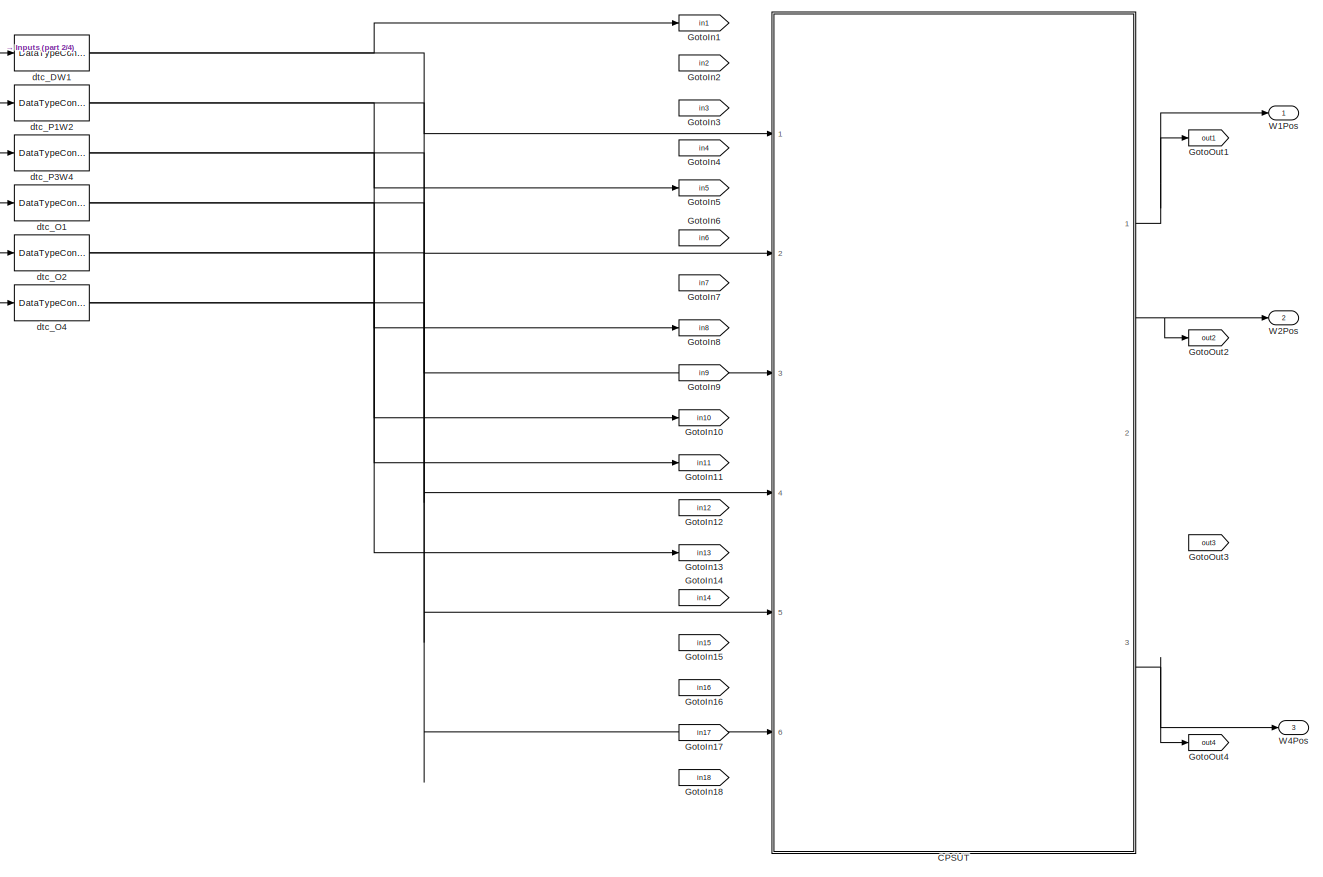
[diagram: root canvas - part 1/4, top left region]
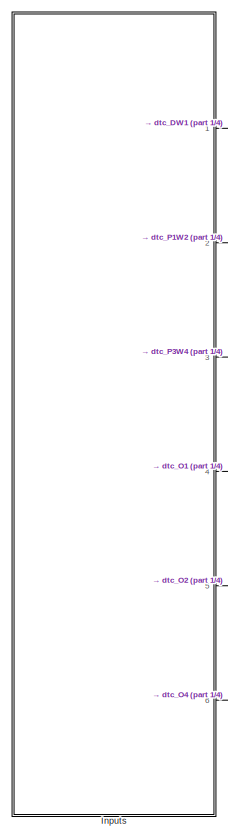
[diagram: root canvas - part 2/4, top left region]
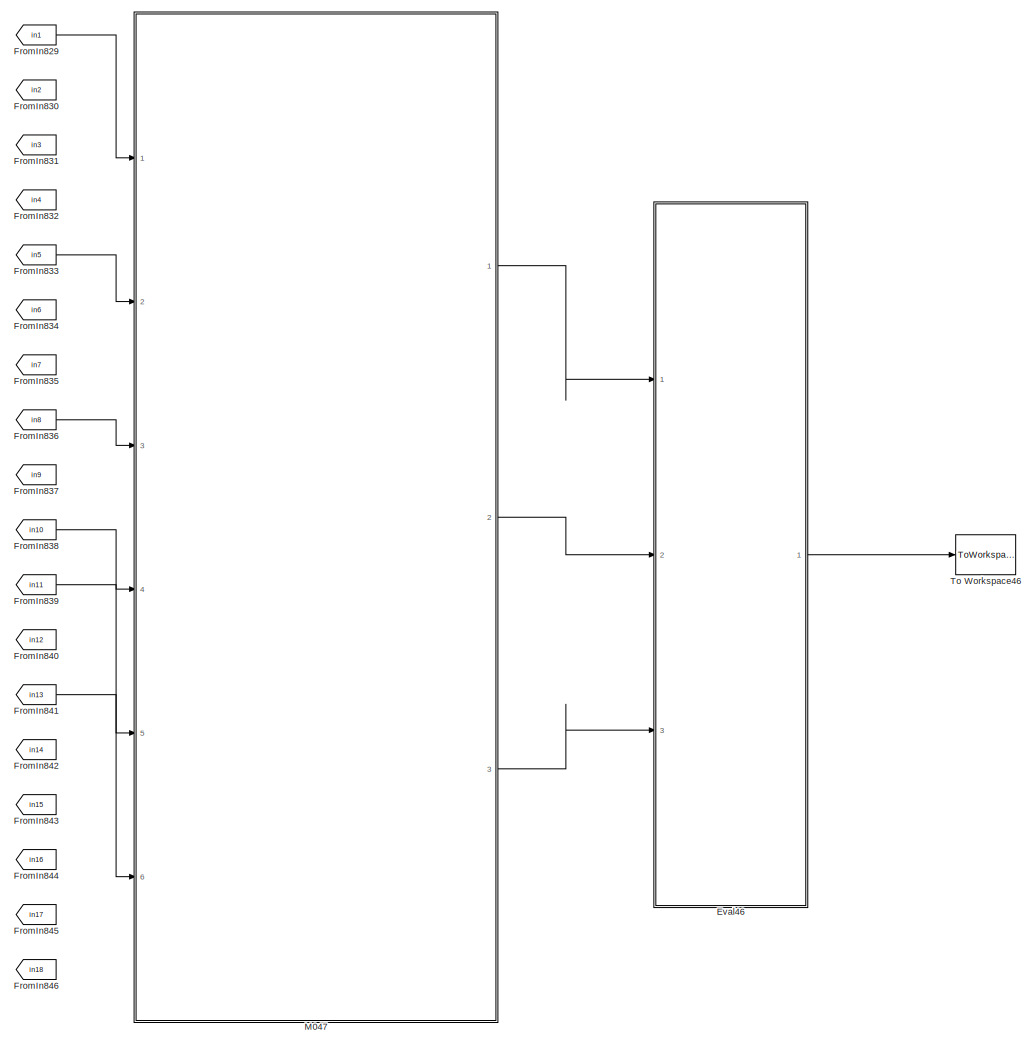
[diagram: root canvas - part 3/4, middle right region]
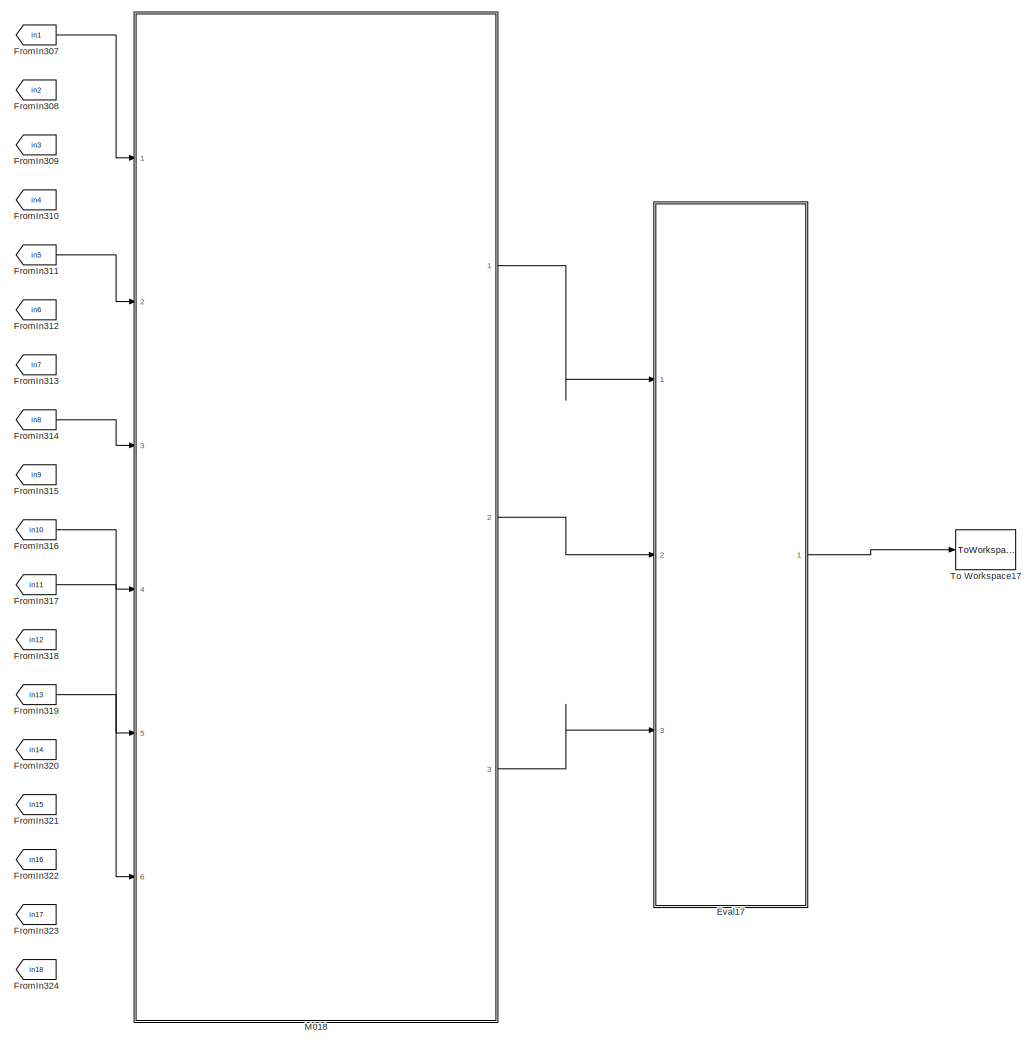
[diagram: root canvas - part 4/4, bottom center region]
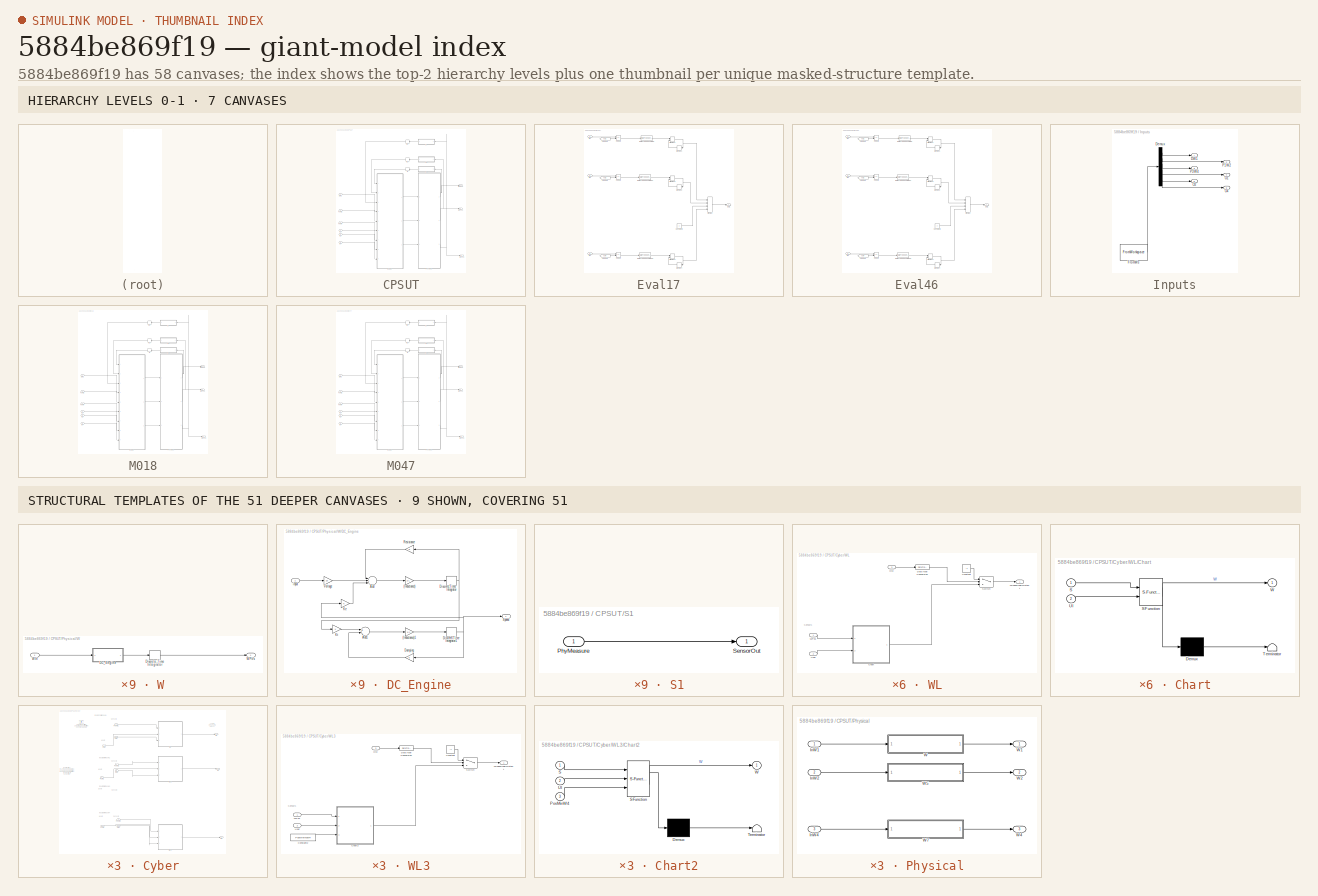
[diagram: thumbnail index - top-2 hierarchy levels (7 canvases) + 9 structural-template representatives of the remaining 51 canvases]
MODEL slx_5884be869f19
KIND model
CONFIG AbsTol = auto
CONFIG EnableMultiTasking = on
CONFIG FixedStep = auto
CONFIG MaxStep = auto
CONFIG MinStep = auto
CONFIG RelTol = 1e-3
CONFIG SampleTimeConstraint = Unconstrained
CONFIG Solver = ode3
CONFIG SolverName = ode3
CONFIG StartTime = 0.0
CONFIG StopTime = 10.0
BLOCK [SubSystem] CPSUT
  Ports = [6, 3]
  RequestExecContextInheritance = off
BLOCK [SubSystem] CPSUT/Cyber
  Ports = [9, 3]
  RequestExecContextInheritance = off
BLOCK [Inport] CPSUT/Cyber/DW1
  IconDisplay = Port number
  Port = 4
BLOCK [Inport] CPSUT/Cyber/OW1
  IconDisplay = Port number
  Port = 7
BLOCK [Inport] CPSUT/Cyber/OW2
  IconDisplay = Port number
  Port = 8
BLOCK [Inport] CPSUT/Cyber/OW4
  IconDisplay = Port number
  Port = 9
BLOCK [Inport] CPSUT/Cyber/P1W2
  IconDisplay = Port number
  Port = 5
BLOCK [Inport] CPSUT/Cyber/P3W4
  IconDisplay = Port number
  Port = 6
BLOCK [Inport] CPSUT/Cyber/PosW1
  IconDisplay = Port number
BLOCK [Inport] CPSUT/Cyber/PosW2
  IconDisplay = Port number
  Port = 2
BLOCK [Inport] CPSUT/Cyber/PosW4
  IconDisplay = Port number
  Port = 3
BLOCK [Outport] CPSUT/Cyber/W1
  IconDisplay = Port number
BLOCK [Outport] CPSUT/Cyber/W2
  IconDisplay = Port number
  Port = 2
BLOCK [Outport] CPSUT/Cyber/W4
  IconDisplay = Port number
  Port = 3
BLOCK [SubSystem] CPSUT/Cyber/WL
  Ports = [3, 1]
  RequestExecContextInheritance = off
BLOCK [SubSystem] CPSUT/Cyber/WL/Chart
  ErrorFcn = Stateflow.Translate.translate
  PermitHierarchicalResolution = ExplicitOnly
  Ports = [2, 1]
  RequestExecContextInheritance = off
  SFBlockType = Chart
  TreatAsAtomicUnit = on
BLOCK [Demux] CPSUT/Cyber/WL/Chart/ Demux 
  Outputs = 1
  Ports = [1, 1]
BLOCK [S-Function] CPSUT/Cyber/WL/Chart/ SFunction 
  EnableBusSupport = off
  FunctionName = sf_sfun
  PortCounts = [2 2]
  Ports = [2, 2]
  SFcnIsStateOwnerBlock = off
  SFunctionDeploymentMode = off
  Tag = Stateflow S-Function c00028M_harness 1
BLOCK [Terminator] CPSUT/Cyber/WL/Chart/ Terminator 
BLOCK [Inport] CPSUT/Cyber/WL/Chart/S
  IconDisplay = Port number
BLOCK [Inport] CPSUT/Cyber/WL/Chart/UI
  IconDisplay = Port number
  Port = 2
BLOCK [Outport] CPSUT/Cyber/WL/Chart/W
  IconDisplay = Port number
BLOCK [Constant] CPSUT/Cyber/WL/Constant
  Value = -1
BLOCK [DataTypeConversion] CPSUT/Cyber/WL/Data Type Conversion
  RndMeth = Floor
  SaturateOnIntegerOverflow = off
BLOCK [Inport] CPSUT/Cyber/WL/OW
  IconDisplay = Port number
  Port = 3
BLOCK [Switch] CPSUT/Cyber/WL/Switch
  Criteria = u2 ~= 0
  InputSameDT = off
  SaturateOnIntegerOverflow = off
  Threshold = 1
  ZeroCross = off
BLOCK [Inport] CPSUT/Cyber/WL/User
  IconDisplay = Port number
  Port = 2
BLOCK [Inport] CPSUT/Cyber/WL/WPos
  IconDisplay = Port number
BLOCK [Outport] CPSUT/Cyber/WL/WindowLogicOutput
  IconDisplay = Port number
BLOCK [SubSystem] CPSUT/Cyber/WL1
  Ports = [3, 1]
  RequestExecContextInheritance = off
BLOCK [SubSystem] CPSUT/Cyber/WL1/Chart1
  ErrorFcn = Stateflow.Translate.translate
  PermitHierarchicalResolution = ExplicitOnly
  Ports = [2, 1]
  RequestExecContextInheritance = off
  SFBlockType = Chart
  TreatAsAtomicUnit = on
BLOCK [Demux] CPSUT/Cyber/WL1/Chart1/ Demux 
  Outputs = 1
  Ports = [1, 1]
BLOCK [S-Function] CPSUT/Cyber/WL1/Chart1/ SFunction 
  EnableBusSupport = off
  FunctionName = sf_sfun
  PortCounts = [2 2]
  Ports = [2, 2]
  SFcnIsStateOwnerBlock = off
  SFunctionDeploymentMode = off
  Tag = Stateflow S-Function c00028M_harness 3
BLOCK [Terminator] CPSUT/Cyber/WL1/Chart1/ Terminator 
BLOCK [Inport] CPSUT/Cyber/WL1/Chart1/S
  IconDisplay = Port number
BLOCK [Inport] CPSUT/Cyber/WL1/Chart1/UI
  IconDisplay = Port number
  Port = 2
BLOCK [Outport] CPSUT/Cyber/WL1/Chart1/W
  IconDisplay = Port number
BLOCK [Constant] CPSUT/Cyber/WL1/Constant
  Value = -1
BLOCK [DataTypeConversion] CPSUT/Cyber/WL1/Data Type Conversion
  RndMeth = Floor
  SaturateOnIntegerOverflow = off
BLOCK [Inport] CPSUT/Cyber/WL1/OW
  IconDisplay = Port number
  Port = 3
BLOCK [Switch] CPSUT/Cyber/WL1/Switch
  Criteria = u2 ~= 0
  InputSameDT = off
  SaturateOnIntegerOverflow = off
  Threshold = 1
  ZeroCross = off
BLOCK [Inport] CPSUT/Cyber/WL1/User
  IconDisplay = Port number
  Port = 2
BLOCK [Inport] CPSUT/Cyber/WL1/WPos
  IconDisplay = Port number
BLOCK [Outport] CPSUT/Cyber/WL1/WindowLogicOutput
  IconDisplay = Port number
BLOCK [SubSystem] CPSUT/Cyber/WL3
  Ports = [3, 1]
  RequestExecContextInheritance = off
BLOCK [SubSystem] CPSUT/Cyber/WL3/Chart2
  ErrorFcn = Stateflow.Translate.translate
  PermitHierarchicalResolution = ExplicitOnly
  Ports = [3, 1]
  RequestExecContextInheritance = off
  SFBlockType = Chart
  TreatAsAtomicUnit = on
BLOCK [Demux] CPSUT/Cyber/WL3/Chart2/ Demux 
  Outputs = 1
  Ports = [1, 1]
BLOCK [S-Function] CPSUT/Cyber/WL3/Chart2/ SFunction 
  EnableBusSupport = off
  FunctionName = sf_sfun
  PortCounts = [3 2]
  Ports = [3, 2]
  SFcnIsStateOwnerBlock = off
  SFunctionDeploymentMode = off
  Tag = Stateflow S-Function c00028M_harness 4
BLOCK [Terminator] CPSUT/Cyber/WL3/Chart2/ Terminator 
BLOCK [Inport] CPSUT/Cyber/WL3/Chart2/PosMinW4
  IconDisplay = Port number
  Port = 3
BLOCK [Inport] CPSUT/Cyber/WL3/Chart2/S
  IconDisplay = Port number
BLOCK [Inport] CPSUT/Cyber/WL3/Chart2/UI
  IconDisplay = Port number
  Port = 2
BLOCK [Outport] CPSUT/Cyber/WL3/Chart2/W
  IconDisplay = Port number
BLOCK [Constant] CPSUT/Cyber/WL3/Constant
  Value = -1
BLOCK [Constant] CPSUT/Cyber/WL3/Constant2
  Value = PosMinimaW4
BLOCK [DataTypeConversion] CPSUT/Cyber/WL3/Data Type Conversion
  RndMeth = Floor
  SaturateOnIntegerOverflow = off
BLOCK [Inport] CPSUT/Cyber/WL3/OW
  IconDisplay = Port number
  Port = 3
BLOCK [Switch] CPSUT/Cyber/WL3/Switch
  Criteria = u2 ~= 0
  InputSameDT = off
  SaturateOnIntegerOverflow = off
  Threshold = 1
  ZeroCross = off
BLOCK [Inport] CPSUT/Cyber/WL3/User
  IconDisplay = Port number
  Port = 2
BLOCK [Inport] CPSUT/Cyber/WL3/WPos
  IconDisplay = Port number
BLOCK [Outport] CPSUT/Cyber/WL3/WindowLogicOutput
  IconDisplay = Port number
BLOCK [Inport] CPSUT/DW1
  IconDisplay = Port number
  OutDataTypeStr = int8
  OutMax = 4
  OutMin = 0
BLOCK [Memory] CPSUT/M
BLOCK [Memory] CPSUT/M1
BLOCK [Memory] CPSUT/M3
BLOCK [Inport] CPSUT/O1
  IconDisplay = Port number
  OutDataTypeStr = boolean
  Port = 4
BLOCK [Inport] CPSUT/O2
  IconDisplay = Port number
  OutDataTypeStr = boolean
  Port = 5
BLOCK [Inport] CPSUT/O4
  IconDisplay = Port number
  OutDataTypeStr = boolean
  Port = 6
BLOCK [Inport] CPSUT/P1W2
  IconDisplay = Port number
  OutDataTypeStr = int8
  OutMax = 4
  OutMin = 0
  Port = 2
BLOCK [Inport] CPSUT/P3W4
  IconDisplay = Port number
  OutDataTypeStr = int8
  OutMax = 4
  OutMin = 0
  Port = 3
BLOCK [SubSystem] CPSUT/Physical
  Ports = [3, 3]
  RequestExecContextInheritance = off
BLOCK [Inport] CPSUT/Physical/InW1
  IconDisplay = Port number
BLOCK [Inport] CPSUT/Physical/InW2
  IconDisplay = Port number
  Port = 2
BLOCK [Inport] CPSUT/Physical/InW4
  IconDisplay = Port number
  Port = 3
BLOCK [SubSystem] CPSUT/Physical/W
  Ports = [1, 1]
  RequestExecContextInheritance = off
BLOCK [SubSystem] CPSUT/Physical/W/DC_Engine
  Ports = [1, 1]
  RequestExecContextInheritance = off
BLOCK [Gain] CPSUT/Physical/W/DC_Engine/(Inductance)
  Gain = 1/L
  OutDataTypeStr = Inherit: Inherit via internal rule
  ParamDataTypeStr = Inherit: Inherit via internal rule
  SaturateOnIntegerOverflow = off
BLOCK [Gain] CPSUT/Physical/W/DC_Engine/(Inductance)1
  Gain = 1/J
  OutDataTypeStr = Inherit: Inherit via internal rule
  ParamDataTypeStr = Inherit: Inherit via internal rule
  SaturateOnIntegerOverflow = off
BLOCK [Sum] CPSUT/Physical/W/DC_Engine/Add
  InputSameDT = off
  Inputs = -+-
  OutDataTypeStr = Inherit: Inherit via internal rule
  Ports = [3, 1]
  SaturateOnIntegerOverflow = off
BLOCK [Sum] CPSUT/Physical/W/DC_Engine/Add1
  InputSameDT = off
  Inputs = +-
  OutDataTypeStr = Inherit: Inherit via internal rule
  Ports = [2, 1]
  SaturateOnIntegerOverflow = off
BLOCK [Gain] CPSUT/Physical/W/DC_Engine/Damping
  Gain = b
  OutDataTypeStr = Inherit: Inherit via internal rule
  ParamDataTypeStr = Inherit: Inherit via internal rule
  SaturateOnIntegerOverflow = off
BLOCK [DiscreteIntegrator] CPSUT/Physical/W/DC_Engine/Discrete-Time Integrator
  ICPrevOutput = DiscIntNeverNeededParam
  ICPrevScaledInput = DiscIntNeverNeededParam
  Ports = [1, 1]
  SampleTime = -1
BLOCK [DiscreteIntegrator] CPSUT/Physical/W/DC_Engine/Discrete-Time Integrator1
  ICPrevOutput = DiscIntNeverNeededParam
  ICPrevScaledInput = DiscIntNeverNeededParam
  Ports = [1, 1]
  SampleTime = -1
BLOCK [Gain] CPSUT/Physical/W/DC_Engine/Ke
  Gain = K
  OutDataTypeStr = Inherit: Inherit via internal rule
  ParamDataTypeStr = Inherit: Inherit via internal rule
  SaturateOnIntegerOverflow = off
BLOCK [Gain] CPSUT/Physical/W/DC_Engine/Kt
  Gain = K
  OutDataTypeStr = Inherit: Inherit via internal rule
  ParamDataTypeStr = Inherit: Inherit via internal rule
  SaturateOnIntegerOverflow = off
BLOCK [Gain] CPSUT/Physical/W/DC_Engine/Resistance
  Gain = R
  OutDataTypeStr = Inherit: Inherit via internal rule
  ParamDataTypeStr = Inherit: Inherit via internal rule
  SaturateOnIntegerOverflow = off
BLOCK [Outport] CPSUT/Physical/W/DC_Engine/Speed
  IconDisplay = Port number
BLOCK [Gain] CPSUT/Physical/W/DC_Engine/Voltage
  Gain = 10
  OutDataTypeStr = Inherit: Inherit via internal rule
  ParamDataTypeStr = Inherit: Inherit via internal rule
  SaturateOnIntegerOverflow = off
BLOCK [Inport] CPSUT/Physical/W/DC_Engine/input
  IconDisplay = Port number
BLOCK [DiscreteIntegrator] CPSUT/Physical/W/Discrete-Time Integrator
  ICPrevOutput = DiscIntNeverNeededParam
  ICPrevScaledInput = DiscIntNeverNeededParam
  InitialCondition = 5
  LimitOutput = on
  LowerSaturationLimit = 0
  Ports = [1, 1]
  SampleTime = -1
  UpperSaturationLimit = 5
BLOCK [Inport] CPSUT/Physical/W/WIn
  IconDisplay = Port number
BLOCK [Outport] CPSUT/Physical/W/WPos
  IconDisplay = Port number
BLOCK [Outport] CPSUT/Physical/W1
  IconDisplay = Port number
BLOCK [Outport] CPSUT/Physical/W2
  IconDisplay = Port number
  Port = 2
BLOCK [Outport] CPSUT/Physical/W4
  IconDisplay = Port number
  Port = 3
BLOCK [SubSystem] CPSUT/Physical/W5
  Ports = [1, 1]
  RequestExecContextInheritance = off
BLOCK [SubSystem] CPSUT/Physical/W5/DC_Engine
  Ports = [1, 1]
  RequestExecContextInheritance = off
BLOCK [Gain] CPSUT/Physical/W5/DC_Engine/(Inductance)
  Gain = 1/L
  OutDataTypeStr = Inherit: Inherit via internal rule
  ParamDataTypeStr = Inherit: Inherit via internal rule
  SaturateOnIntegerOverflow = off
BLOCK [Gain] CPSUT/Physical/W5/DC_Engine/(Inductance)1
  Gain = 1/J
  OutDataTypeStr = Inherit: Inherit via internal rule
  ParamDataTypeStr = Inherit: Inherit via internal rule
  SaturateOnIntegerOverflow = off
BLOCK [Sum] CPSUT/Physical/W5/DC_Engine/Add
  InputSameDT = off
  Inputs = -+-
  OutDataTypeStr = Inherit: Inherit via internal rule
  Ports = [3, 1]
  SaturateOnIntegerOverflow = off
BLOCK [Sum] CPSUT/Physical/W5/DC_Engine/Add1
  InputSameDT = off
  Inputs = +-
  OutDataTypeStr = Inherit: Inherit via internal rule
  Ports = [2, 1]
  SaturateOnIntegerOverflow = off
BLOCK [Gain] CPSUT/Physical/W5/DC_Engine/Damping
  Gain = b
  OutDataTypeStr = Inherit: Inherit via internal rule
  ParamDataTypeStr = Inherit: Inherit via internal rule
  SaturateOnIntegerOverflow = off
BLOCK [DiscreteIntegrator] CPSUT/Physical/W5/DC_Engine/Discrete-Time Integrator
  ICPrevOutput = DiscIntNeverNeededParam
  ICPrevScaledInput = DiscIntNeverNeededParam
  Ports = [1, 1]
  SampleTime = -1
BLOCK [DiscreteIntegrator] CPSUT/Physical/W5/DC_Engine/Discrete-Time Integrator1
  ICPrevOutput = DiscIntNeverNeededParam
  ICPrevScaledInput = DiscIntNeverNeededParam
  Ports = [1, 1]
  SampleTime = -1
BLOCK [Gain] CPSUT/Physical/W5/DC_Engine/Ke
  Gain = K
  OutDataTypeStr = Inherit: Inherit via internal rule
  ParamDataTypeStr = Inherit: Inherit via internal rule
  SaturateOnIntegerOverflow = off
BLOCK [Gain] CPSUT/Physical/W5/DC_Engine/Kt
  Gain = K
  OutDataTypeStr = Inherit: Inherit via internal rule
  ParamDataTypeStr = Inherit: Inherit via internal rule
  SaturateOnIntegerOverflow = off
BLOCK [Gain] CPSUT/Physical/W5/DC_Engine/Resistance
  Gain = R
  OutDataTypeStr = Inherit: Inherit via internal rule
  ParamDataTypeStr = Inherit: Inherit via internal rule
  SaturateOnIntegerOverflow = off
BLOCK [Outport] CPSUT/Physical/W5/DC_Engine/Speed
  IconDisplay = Port number
BLOCK [Gain] CPSUT/Physical/W5/DC_Engine/Voltage
  Gain = 10
  OutDataTypeStr = Inherit: Inherit via internal rule
  ParamDataTypeStr = Inherit: Inherit via internal rule
  SaturateOnIntegerOverflow = off
BLOCK [Inport] CPSUT/Physical/W5/DC_Engine/input
  IconDisplay = Port number
BLOCK [DiscreteIntegrator] CPSUT/Physical/W5/Discrete-Time Integrator
  ICPrevOutput = DiscIntNeverNeededParam
  ICPrevScaledInput = DiscIntNeverNeededParam
  InitialCondition = 5
  LimitOutput = on
  LowerSaturationLimit = 0
  Ports = [1, 1]
  SampleTime = -1
  UpperSaturationLimit = 5
BLOCK [Inport] CPSUT/Physical/W5/WIn
  IconDisplay = Port number
BLOCK [Outport] CPSUT/Physical/W5/WPos
  IconDisplay = Port number
BLOCK [SubSystem] CPSUT/Physical/W7
  Ports = [1, 1]
  RequestExecContextInheritance = off
BLOCK [SubSystem] CPSUT/Physical/W7/DC_Engine
  Ports = [1, 1]
  RequestExecContextInheritance = off
BLOCK [Gain] CPSUT/Physical/W7/DC_Engine/(Inductance)
  Gain = 1/L
  OutDataTypeStr = Inherit: Inherit via internal rule
  ParamDataTypeStr = Inherit: Inherit via internal rule
  SaturateOnIntegerOverflow = off
BLOCK [Gain] CPSUT/Physical/W7/DC_Engine/(Inductance)1
  Gain = 1/J
  OutDataTypeStr = Inherit: Inherit via internal rule
  ParamDataTypeStr = Inherit: Inherit via internal rule
  SaturateOnIntegerOverflow = off
BLOCK [Sum] CPSUT/Physical/W7/DC_Engine/Add
  InputSameDT = off
  Inputs = -+-
  OutDataTypeStr = Inherit: Inherit via internal rule
  Ports = [3, 1]
  SaturateOnIntegerOverflow = off
BLOCK [Sum] CPSUT/Physical/W7/DC_Engine/Add1
  InputSameDT = off
  Inputs = +-
  OutDataTypeStr = Inherit: Inherit via internal rule
  Ports = [2, 1]
  SaturateOnIntegerOverflow = off
BLOCK [Gain] CPSUT/Physical/W7/DC_Engine/Damping
  Gain = b
  OutDataTypeStr = Inherit: Inherit via internal rule
  ParamDataTypeStr = Inherit: Inherit via internal rule
  SaturateOnIntegerOverflow = off
BLOCK [DiscreteIntegrator] CPSUT/Physical/W7/DC_Engine/Discrete-Time Integrator
  ICPrevOutput = DiscIntNeverNeededParam
  ICPrevScaledInput = DiscIntNeverNeededParam
  Ports = [1, 1]
  SampleTime = -1
BLOCK [DiscreteIntegrator] CPSUT/Physical/W7/DC_Engine/Discrete-Time Integrator1
  ICPrevOutput = DiscIntNeverNeededParam
  ICPrevScaledInput = DiscIntNeverNeededParam
  Ports = [1, 1]
  SampleTime = -1
BLOCK [Gain] CPSUT/Physical/W7/DC_Engine/Ke
  Gain = K
  OutDataTypeStr = Inherit: Inherit via internal rule
  ParamDataTypeStr = Inherit: Inherit via internal rule
  SaturateOnIntegerOverflow = off
BLOCK [Gain] CPSUT/Physical/W7/DC_Engine/Kt
  Gain = K
  OutDataTypeStr = Inherit: Inherit via internal rule
  ParamDataTypeStr = Inherit: Inherit via internal rule
  SaturateOnIntegerOverflow = off
BLOCK [Gain] CPSUT/Physical/W7/DC_Engine/Resistance
  Gain = R
  OutDataTypeStr = Inherit: Inherit via internal rule
  ParamDataTypeStr = Inherit: Inherit via internal rule
  SaturateOnIntegerOverflow = off
BLOCK [Outport] CPSUT/Physical/W7/DC_Engine/Speed
  IconDisplay = Port number
BLOCK [Gain] CPSUT/Physical/W7/DC_Engine/Voltage
  Gain = 10
  OutDataTypeStr = Inherit: Inherit via internal rule
  ParamDataTypeStr = Inherit: Inherit via internal rule
  SaturateOnIntegerOverflow = off
BLOCK [Inport] CPSUT/Physical/W7/DC_Engine/input
  IconDisplay = Port number
BLOCK [DiscreteIntegrator] CPSUT/Physical/W7/Discrete-Time Integrator
  ICPrevOutput = DiscIntNeverNeededParam
  ICPrevScaledInput = DiscIntNeverNeededParam
  InitialCondition = 5
  LimitOutput = on
  LowerSaturationLimit = PosMinimaW4
  Ports = [1, 1]
  SampleTime = -1
  UpperSaturationLimit = 5
BLOCK [Inport] CPSUT/Physical/W7/WIn
  IconDisplay = Port number
BLOCK [Outport] CPSUT/Physical/W7/WPos
  IconDisplay = Port number
BLOCK [SubSystem] CPSUT/S1
  Ports = [1, 1]
  RequestExecContextInheritance = off
BLOCK [Inport] CPSUT/S1/PhyMeasure
  IconDisplay = Port number
BLOCK [Outport] CPSUT/S1/SensorOut
  IconDisplay = Port number
BLOCK [SubSystem] CPSUT/S2
  Ports = [1, 1]
  RequestExecContextInheritance = off
BLOCK [Inport] CPSUT/S2/PhyMeasure
  IconDisplay = Port number
BLOCK [Outport] CPSUT/S2/SensorOut
  IconDisplay = Port number
BLOCK [SubSystem] CPSUT/S4
  Ports = [1, 1]
  RequestExecContextInheritance = off
BLOCK [Inport] CPSUT/S4/PhyMeasure
  IconDisplay = Port number
BLOCK [Outport] CPSUT/S4/SensorOut
  IconDisplay = Port number
BLOCK [Outport] CPSUT/W1Pos
  IconDisplay = Port number
BLOCK [Outport] CPSUT/W2Pos
  IconDisplay = Port number
  Port = 2
BLOCK [Outport] CPSUT/W4Pos
  IconDisplay = Port number
  Port = 3
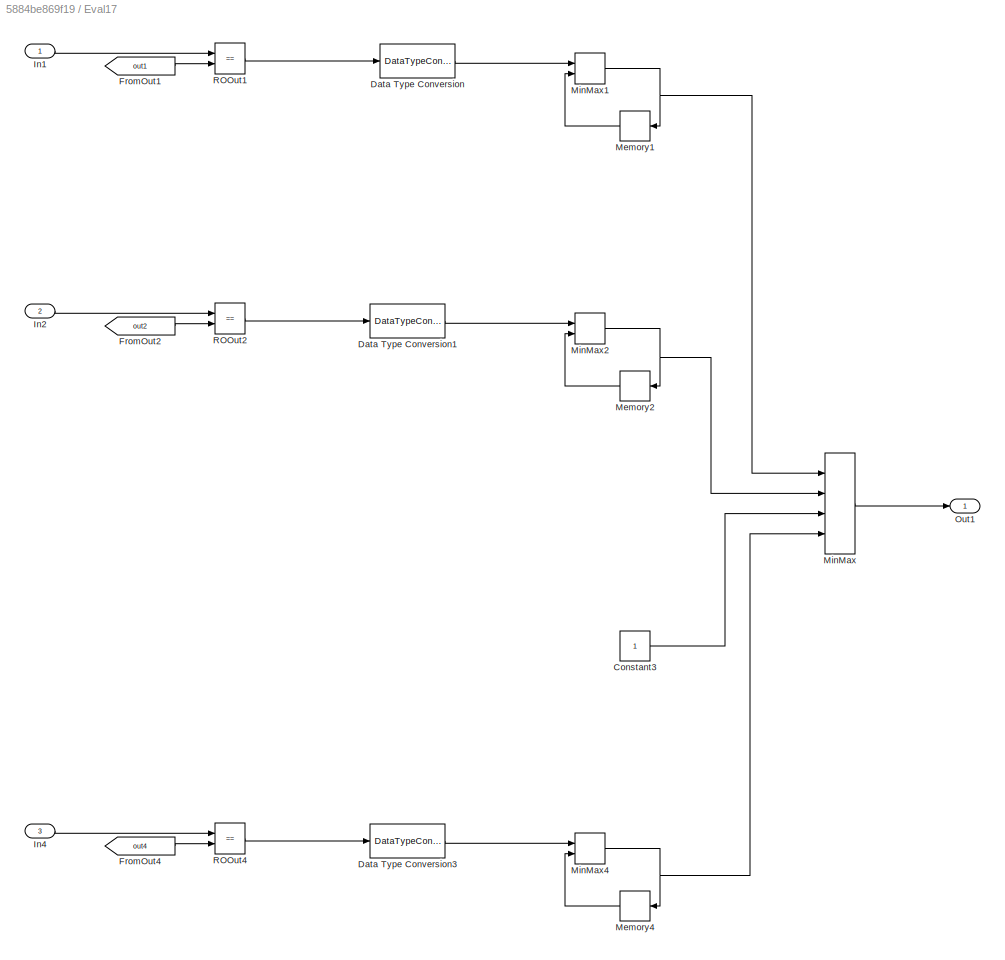
BLOCK [SubSystem] Eval17
  Ports = [3, 1]
  RequestExecContextInheritance = off
BLOCK [Constant] Eval17/Constant3
BLOCK [DataTypeConversion] Eval17/Data Type Conversion
  RndMeth = Floor
  SaturateOnIntegerOverflow = off
BLOCK [DataTypeConversion] Eval17/Data Type Conversion1
  RndMeth = Floor
  SaturateOnIntegerOverflow = off
BLOCK [DataTypeConversion] Eval17/Data Type Conversion3
  RndMeth = Floor
  SaturateOnIntegerOverflow = off
BLOCK [From] Eval17/FromOut1
  GotoTag = out1
BLOCK [From] Eval17/FromOut2
  GotoTag = out2
BLOCK [From] Eval17/FromOut4
  GotoTag = out4
BLOCK [Inport] Eval17/In1
  IconDisplay = Port number
BLOCK [Inport] Eval17/In2
  IconDisplay = Port number
  Port = 2
BLOCK [Inport] Eval17/In4
  IconDisplay = Port number
  Port = 3
BLOCK [Memory] Eval17/Memory1
  InitialCondition = 1
BLOCK [Memory] Eval17/Memory2
  InitialCondition = 1
BLOCK [Memory] Eval17/Memory4
  InitialCondition = 1
BLOCK [MinMax] Eval17/MinMax
  InputSameDT = off
  Inputs = 4
  Ports = [4, 1]
  SaturateOnIntegerOverflow = off
BLOCK [MinMax] Eval17/MinMax1
  InputSameDT = off
  Inputs = 2
  Ports = [2, 1]
  SaturateOnIntegerOverflow = off
BLOCK [MinMax] Eval17/MinMax2
  InputSameDT = off
  Inputs = 2
  Ports = [2, 1]
  SaturateOnIntegerOverflow = off
BLOCK [MinMax] Eval17/MinMax4
  InputSameDT = off
  Inputs = 2
  Ports = [2, 1]
  SaturateOnIntegerOverflow = off
BLOCK [Outport] Eval17/Out1
  IconDisplay = Port number
BLOCK [RelationalOperator] Eval17/ROOut1
  InputSameDT = off
  Operator = ==
  OutDataTypeStr = boolean
  Ports = [2, 1]
  RndMeth = Simplest
BLOCK [RelationalOperator] Eval17/ROOut2
  InputSameDT = off
  Operator = ==
  OutDataTypeStr = boolean
  Ports = [2, 1]
  RndMeth = Simplest
BLOCK [RelationalOperator] Eval17/ROOut4
  InputSameDT = off
  Operator = ==
  OutDataTypeStr = boolean
  Ports = [2, 1]
  RndMeth = Simplest
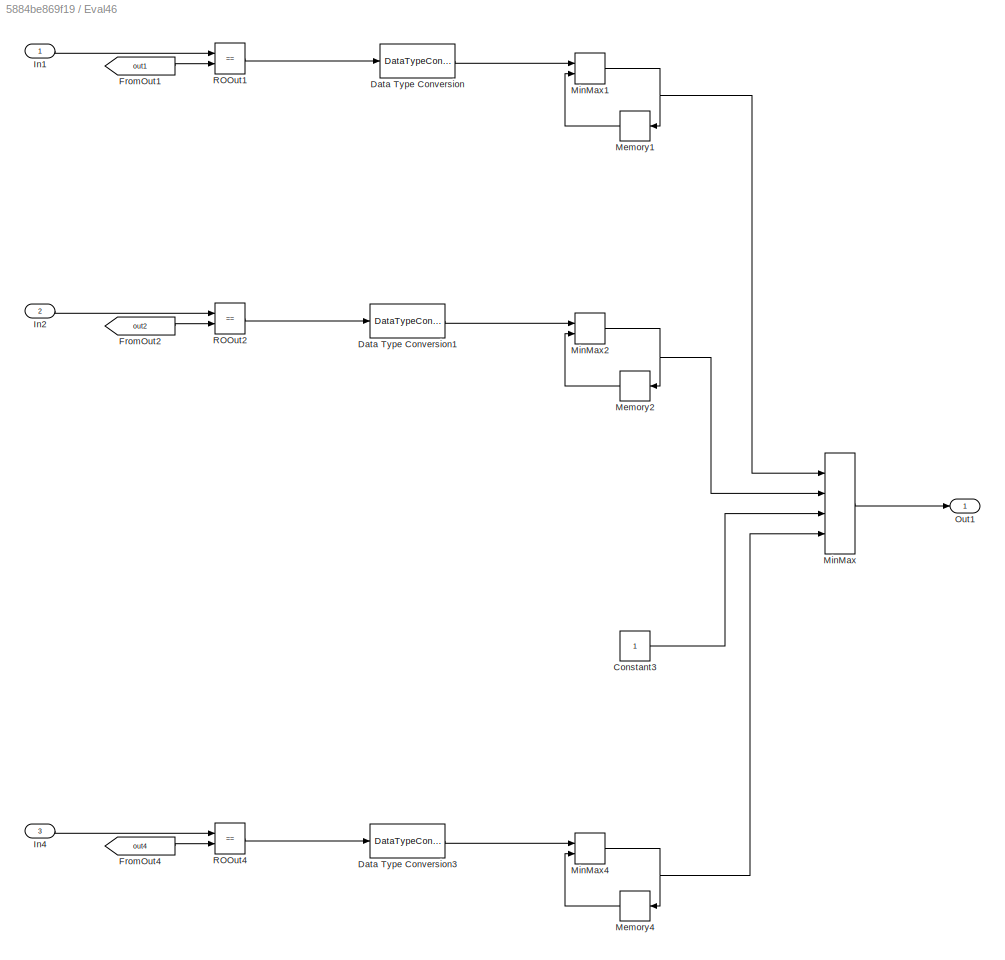
BLOCK [SubSystem] Eval46
  Ports = [3, 1]
  RequestExecContextInheritance = off
BLOCK [Constant] Eval46/Constant3
BLOCK [DataTypeConversion] Eval46/Data Type Conversion
  RndMeth = Floor
  SaturateOnIntegerOverflow = off
BLOCK [DataTypeConversion] Eval46/Data Type Conversion1
  RndMeth = Floor
  SaturateOnIntegerOverflow = off
BLOCK [DataTypeConversion] Eval46/Data Type Conversion3
  RndMeth = Floor
  SaturateOnIntegerOverflow = off
BLOCK [From] Eval46/FromOut1
  GotoTag = out1
BLOCK [From] Eval46/FromOut2
  GotoTag = out2
BLOCK [From] Eval46/FromOut4
  GotoTag = out4
BLOCK [Inport] Eval46/In1
  IconDisplay = Port number
BLOCK [Inport] Eval46/In2
  IconDisplay = Port number
  Port = 2
BLOCK [Inport] Eval46/In4
  IconDisplay = Port number
  Port = 3
BLOCK [Memory] Eval46/Memory1
  InitialCondition = 1
BLOCK [Memory] Eval46/Memory2
  InitialCondition = 1
BLOCK [Memory] Eval46/Memory4
  InitialCondition = 1
BLOCK [MinMax] Eval46/MinMax
  InputSameDT = off
  Inputs = 4
  Ports = [4, 1]
  SaturateOnIntegerOverflow = off
BLOCK [MinMax] Eval46/MinMax1
  InputSameDT = off
  Inputs = 2
  Ports = [2, 1]
  SaturateOnIntegerOverflow = off
BLOCK [MinMax] Eval46/MinMax2
  InputSameDT = off
  Inputs = 2
  Ports = [2, 1]
  SaturateOnIntegerOverflow = off
BLOCK [MinMax] Eval46/MinMax4
  InputSameDT = off
  Inputs = 2
  Ports = [2, 1]
  SaturateOnIntegerOverflow = off
BLOCK [Outport] Eval46/Out1
  IconDisplay = Port number
BLOCK [RelationalOperator] Eval46/ROOut1
  InputSameDT = off
  Operator = ==
  OutDataTypeStr = boolean
  Ports = [2, 1]
  RndMeth = Simplest
BLOCK [RelationalOperator] Eval46/ROOut2
  InputSameDT = off
  Operator = ==
  OutDataTypeStr = boolean
  Ports = [2, 1]
  RndMeth = Simplest
BLOCK [RelationalOperator] Eval46/ROOut4
  InputSameDT = off
  Operator = ==
  OutDataTypeStr = boolean
  Ports = [2, 1]
  RndMeth = Simplest
BLOCK [From] FromIn307
  GotoTag = in1
BLOCK [From] FromIn308
  GotoTag = in2
BLOCK [From] FromIn309
  GotoTag = in3
BLOCK [From] FromIn310
  GotoTag = in4
BLOCK [From] FromIn311
  GotoTag = in5
BLOCK [From] FromIn312
  GotoTag = in6
BLOCK [From] FromIn313
  GotoTag = in7
BLOCK [From] FromIn314
  GotoTag = in8
BLOCK [From] FromIn315
  GotoTag = in9
BLOCK [From] FromIn316
  GotoTag = in10
BLOCK [From] FromIn317
  GotoTag = in11
BLOCK [From] FromIn318
  GotoTag = in12
BLOCK [From] FromIn319
  GotoTag = in13
BLOCK [From] FromIn320
  GotoTag = in14
BLOCK [From] FromIn321
  GotoTag = in15
BLOCK [From] FromIn322
  GotoTag = in16
BLOCK [From] FromIn323
  GotoTag = in17
BLOCK [From] FromIn324
  GotoTag = in18
BLOCK [From] FromIn829
  GotoTag = in1
BLOCK [From] FromIn830
  GotoTag = in2
BLOCK [From] FromIn831
  GotoTag = in3
BLOCK [From] FromIn832
  GotoTag = in4
BLOCK [From] FromIn833
  GotoTag = in5
BLOCK [From] FromIn834
  GotoTag = in6
BLOCK [From] FromIn835
  GotoTag = in7
BLOCK [From] FromIn836
  GotoTag = in8
BLOCK [From] FromIn837
  GotoTag = in9
BLOCK [From] FromIn838
  GotoTag = in10
BLOCK [From] FromIn839
  GotoTag = in11
BLOCK [From] FromIn840
  GotoTag = in12
BLOCK [From] FromIn841
  GotoTag = in13
BLOCK [From] FromIn842
  GotoTag = in14
BLOCK [From] FromIn843
  GotoTag = in15
BLOCK [From] FromIn844
  GotoTag = in16
BLOCK [From] FromIn845
  GotoTag = in17
BLOCK [From] FromIn846
  GotoTag = in18
BLOCK [Goto] GotoIn1
  GotoTag = in1
BLOCK [Goto] GotoIn10
  GotoTag = in10
BLOCK [Goto] GotoIn11
  GotoTag = in11
BLOCK [Goto] GotoIn12
  GotoTag = in12
BLOCK [Goto] GotoIn13
  GotoTag = in13
BLOCK [Goto] GotoIn14
  GotoTag = in14
BLOCK [Goto] GotoIn15
  GotoTag = in15
BLOCK [Goto] GotoIn16
  GotoTag = in16
BLOCK [Goto] GotoIn17
  GotoTag = in17
BLOCK [Goto] GotoIn18
  GotoTag = in18
BLOCK [Goto] GotoIn2
  GotoTag = in2
BLOCK [Goto] GotoIn3
  GotoTag = in3
BLOCK [Goto] GotoIn4
  GotoTag = in4
BLOCK [Goto] GotoIn5
  GotoTag = in5
BLOCK [Goto] GotoIn6
  GotoTag = in6
BLOCK [Goto] GotoIn7
  GotoTag = in7
BLOCK [Goto] GotoIn8
  GotoTag = in8
BLOCK [Goto] GotoIn9
  GotoTag = in9
BLOCK [Goto] GotoOut1
  GotoTag = out1
  TagVisibility = global
BLOCK [Goto] GotoOut2
  GotoTag = out2
  TagVisibility = global
BLOCK [Goto] GotoOut3
  GotoTag = out3
  TagVisibility = global
BLOCK [Goto] GotoOut4
  GotoTag = out4
  TagVisibility = global
BLOCK [SubSystem] Inputs
  ClipboardFcn = sigbuilder_block('clipboard');
  CloseFcn = sigbuilder_block('close');
  ContinueFcn = sigbuilder_block('continue');
  CopyFcn = sigbuilder_block('copy');
  DeleteFcn = sigbuilder_block('delete');
  LoadFcn = sigbuilder_block('load');
  MaskHideContents = on
  ModelCloseFcn = sigbuilder_block('modelClose');
  NameChangeFcn = sigbuilder_block('namechange');
  OpenFcn = sigbuilder_block('open');
  PauseFcn = sigbuilder_block('pause');
  Ports = [0, 6]
  PreSaveFcn = sigbuilder_block('preSave');
  RequestExecContextInheritance = off
  StartFcn = sigbuilder_block('start');
  StopFcn = sigbuilder_block('stop');
  Tag = STV Subsys
BLOCK [Outport] Inputs/DW1
  IconDisplay = Port number
  Tag = STV Outport
BLOCK [Demux] Inputs/Demux
  Outputs = 6
  Ports = [1, 6]
  Tag = STV Demux
BLOCK [FromWorkspace] Inputs/FromWs
  SampleTime = 0
  Tag = STV FromWs
  VariableName = tuvar
BLOCK [Outport] Inputs/O1
  IconDisplay = Port number
  Port = 4
  Tag = STV Outport
BLOCK [Outport] Inputs/O2
  IconDisplay = Port number
  Port = 5
  Tag = STV Outport
BLOCK [Outport] Inputs/O4
  IconDisplay = Port number
  Port = 6
  Tag = STV Outport
BLOCK [Outport] Inputs/P1W2
  IconDisplay = Port number
  Port = 2
  Tag = STV Outport
BLOCK [Outport] Inputs/P3W4
  IconDisplay = Port number
  Port = 3
  Tag = STV Outport
BLOCK [SubSystem] M018
  Ports = [6, 3]
  RequestExecContextInheritance = off
BLOCK [SubSystem] M018/Cyber
  Ports = [9, 3]
  RequestExecContextInheritance = off
BLOCK [Inport] M018/Cyber/DW1
  IconDisplay = Port number
  Port = 4
BLOCK [Inport] M018/Cyber/OW1
  IconDisplay = Port number
  Port = 7
BLOCK [Inport] M018/Cyber/OW2
  IconDisplay = Port number
  Port = 8
BLOCK [Inport] M018/Cyber/OW4
  IconDisplay = Port number
  Port = 9
BLOCK [Inport] M018/Cyber/P1W2
  IconDisplay = Port number
  Port = 5
BLOCK [Inport] M018/Cyber/P3W4
  IconDisplay = Port number
  Port = 6
BLOCK [Inport] M018/Cyber/PosW1
  IconDisplay = Port number
BLOCK [Inport] M018/Cyber/PosW2
  IconDisplay = Port number
  Port = 2
BLOCK [Inport] M018/Cyber/PosW4
  IconDisplay = Port number
  Port = 3
BLOCK [Outport] M018/Cyber/W1
  IconDisplay = Port number
BLOCK [Outport] M018/Cyber/W2
  IconDisplay = Port number
  Port = 2
BLOCK [Outport] M018/Cyber/W4
  IconDisplay = Port number
  Port = 3
BLOCK [SubSystem] M018/Cyber/WL
  Ports = [3, 1]
  RequestExecContextInheritance = off
BLOCK [SubSystem] M018/Cyber/WL/Chart
  ErrorFcn = Stateflow.Translate.translate
  PermitHierarchicalResolution = ExplicitOnly
  Ports = [2, 1]
  RequestExecContextInheritance = off
  SFBlockType = Chart
  TreatAsAtomicUnit = on
BLOCK [Demux] M018/Cyber/WL/Chart/ Demux 
  Outputs = 1
  Ports = [1, 1]
BLOCK [S-Function] M018/Cyber/WL/Chart/ SFunction 
  EnableBusSupport = off
  FunctionName = sf_sfun
  PortCounts = [2 2]
  Ports = [2, 2]
  SFcnIsStateOwnerBlock = off
  SFunctionDeploymentMode = off
  Tag = Stateflow S-Function c00028M_harness 73
BLOCK [Terminator] M018/Cyber/WL/Chart/ Terminator 
BLOCK [Inport] M018/Cyber/WL/Chart/S
  IconDisplay = Port number
BLOCK [Inport] M018/Cyber/WL/Chart/UI
  IconDisplay = Port number
  Port = 2
BLOCK [Outport] M018/Cyber/WL/Chart/W
  IconDisplay = Port number
BLOCK [Constant] M018/Cyber/WL/Constant
  Value = -1
BLOCK [DataTypeConversion] M018/Cyber/WL/Data Type Conversion
  RndMeth = Floor
  SaturateOnIntegerOverflow = off
BLOCK [Inport] M018/Cyber/WL/OW
  IconDisplay = Port number
  Port = 3
BLOCK [Switch] M018/Cyber/WL/Switch
  Criteria = u2 ~= 0
  InputSameDT = off
  SaturateOnIntegerOverflow = off
  Threshold = 1
  ZeroCross = off
BLOCK [Inport] M018/Cyber/WL/User
  IconDisplay = Port number
  Port = 2
BLOCK [Inport] M018/Cyber/WL/WPos
  IconDisplay = Port number
BLOCK [Outport] M018/Cyber/WL/WindowLogicOutput
  IconDisplay = Port number
BLOCK [SubSystem] M018/Cyber/WL1
  Ports = [3, 1]
  RequestExecContextInheritance = off
BLOCK [SubSystem] M018/Cyber/WL1/Chart1
  ErrorFcn = Stateflow.Translate.translate
  PermitHierarchicalResolution = ExplicitOnly
  Ports = [2, 1]
  RequestExecContextInheritance = off
  SFBlockType = Chart
  TreatAsAtomicUnit = on
BLOCK [Demux] M018/Cyber/WL1/Chart1/ Demux 
  Outputs = 1
  Ports = [1, 1]
BLOCK [S-Function] M018/Cyber/WL1/Chart1/ SFunction 
  EnableBusSupport = off
  FunctionName = sf_sfun
  PortCounts = [2 2]
  Ports = [2, 2]
  SFcnIsStateOwnerBlock = off
  SFunctionDeploymentMode = off
  Tag = Stateflow S-Function c00028M_harness 74
BLOCK [Terminator] M018/Cyber/WL1/Chart1/ Terminator 
BLOCK [Inport] M018/Cyber/WL1/Chart1/S
  IconDisplay = Port number
BLOCK [Inport] M018/Cyber/WL1/Chart1/UI
  IconDisplay = Port number
  Port = 2
BLOCK [Outport] M018/Cyber/WL1/Chart1/W
  IconDisplay = Port number
BLOCK [Constant] M018/Cyber/WL1/Constant
  Value = -1
BLOCK [DataTypeConversion] M018/Cyber/WL1/Data Type Conversion
  RndMeth = Floor
  SaturateOnIntegerOverflow = off
BLOCK [Inport] M018/Cyber/WL1/OW
  IconDisplay = Port number
  Port = 3
BLOCK [Switch] M018/Cyber/WL1/Switch
  Criteria = u2 ~= 0
  InputSameDT = off
  SaturateOnIntegerOverflow = off
  Threshold = 1
  ZeroCross = off
BLOCK [Inport] M018/Cyber/WL1/User
  IconDisplay = Port number
  Port = 2
BLOCK [Inport] M018/Cyber/WL1/WPos
  IconDisplay = Port number
BLOCK [Outport] M018/Cyber/WL1/WindowLogicOutput
  IconDisplay = Port number
BLOCK [SubSystem] M018/Cyber/WL3
  Ports = [3, 1]
  RequestExecContextInheritance = off
BLOCK [SubSystem] M018/Cyber/WL3/Chart2
  ErrorFcn = Stateflow.Translate.translate
  PermitHierarchicalResolution = ExplicitOnly
  Ports = [3, 1]
  RequestExecContextInheritance = off
  SFBlockType = Chart
  TreatAsAtomicUnit = on
BLOCK [Demux] M018/Cyber/WL3/Chart2/ Demux 
  Outputs = 1
  Ports = [1, 1]
BLOCK [S-Function] M018/Cyber/WL3/Chart2/ SFunction 
  EnableBusSupport = off
  FunctionName = sf_sfun
  PortCounts = [3 2]
  Ports = [3, 2]
  SFcnIsStateOwnerBlock = off
  SFunctionDeploymentMode = off
  Tag = Stateflow S-Function c00028M_harness 76
BLOCK [Terminator] M018/Cyber/WL3/Chart2/ Terminator 
BLOCK [Inport] M018/Cyber/WL3/Chart2/PosMinW4
  IconDisplay = Port number
  Port = 3
BLOCK [Inport] M018/Cyber/WL3/Chart2/S
  IconDisplay = Port number
BLOCK [Inport] M018/Cyber/WL3/Chart2/UI
  IconDisplay = Port number
  Port = 2
BLOCK [Outport] M018/Cyber/WL3/Chart2/W
  IconDisplay = Port number
BLOCK [Constant] M018/Cyber/WL3/Constant
  Value = -1
BLOCK [Constant] M018/Cyber/WL3/Constant2
  Value = PosMinimaW4
BLOCK [DataTypeConversion] M018/Cyber/WL3/Data Type Conversion
  RndMeth = Floor
  SaturateOnIntegerOverflow = off
BLOCK [Inport] M018/Cyber/WL3/OW
  IconDisplay = Port number
  Port = 3
BLOCK [Switch] M018/Cyber/WL3/Switch
  Criteria = u2 ~= 0
  InputSameDT = off
  SaturateOnIntegerOverflow = off
  Threshold = 1
  ZeroCross = off
BLOCK [Inport] M018/Cyber/WL3/User
  IconDisplay = Port number
  Port = 2
BLOCK [Inport] M018/Cyber/WL3/WPos
  IconDisplay = Port number
BLOCK [Outport] M018/Cyber/WL3/WindowLogicOutput
  IconDisplay = Port number
BLOCK [Inport] M018/DW1
  IconDisplay = Port number
  OutDataTypeStr = int8
  OutMax = 4
  OutMin = 0
BLOCK [Memory] M018/M
BLOCK [Memory] M018/M1
BLOCK [Memory] M018/M3
BLOCK [Inport] M018/O1
  IconDisplay = Port number
  OutDataTypeStr = boolean
  Port = 4
BLOCK [Inport] M018/O2
  IconDisplay = Port number
  OutDataTypeStr = boolean
  Port = 5
BLOCK [Inport] M018/O4
  IconDisplay = Port number
  OutDataTypeStr = boolean
  Port = 6
BLOCK [Inport] M018/P1W2
  IconDisplay = Port number
  OutDataTypeStr = int8
  OutMax = 4
  OutMin = 0
  Port = 2
BLOCK [Inport] M018/P3W4
  IconDisplay = Port number
  OutDataTypeStr = int8
  OutMax = 4
  OutMin = 0
  Port = 3
BLOCK [SubSystem] M018/Physical
  Ports = [3, 3]
  RequestExecContextInheritance = off
BLOCK [Inport] M018/Physical/InW1
  IconDisplay = Port number
BLOCK [Inport] M018/Physical/InW2
  IconDisplay = Port number
  Port = 2
BLOCK [Inport] M018/Physical/InW4
  IconDisplay = Port number
  Port = 3
BLOCK [SubSystem] M018/Physical/W
  Ports = [1, 1]
  RequestExecContextInheritance = off
BLOCK [SubSystem] M018/Physical/W/DC_Engine
  Ports = [1, 1]
  RequestExecContextInheritance = off
BLOCK [Gain] M018/Physical/W/DC_Engine/(Inductance)
  Gain = 1/L
  OutDataTypeStr = Inherit: Inherit via internal rule
  ParamDataTypeStr = Inherit: Inherit via internal rule
  SaturateOnIntegerOverflow = off
BLOCK [Gain] M018/Physical/W/DC_Engine/(Inductance)1
  Gain = 1/J
  OutDataTypeStr = Inherit: Inherit via internal rule
  ParamDataTypeStr = Inherit: Inherit via internal rule
  SaturateOnIntegerOverflow = off
BLOCK [Sum] M018/Physical/W/DC_Engine/Add
  InputSameDT = off
  Inputs = -+-
  OutDataTypeStr = Inherit: Inherit via internal rule
  Ports = [3, 1]
  SaturateOnIntegerOverflow = off
BLOCK [Sum] M018/Physical/W/DC_Engine/Add1
  InputSameDT = off
  Inputs = +-
  OutDataTypeStr = Inherit: Inherit via internal rule
  Ports = [2, 1]
  SaturateOnIntegerOverflow = off
BLOCK [Gain] M018/Physical/W/DC_Engine/Damping
  Gain = b
  OutDataTypeStr = Inherit: Inherit via internal rule
  ParamDataTypeStr = Inherit: Inherit via internal rule
  SaturateOnIntegerOverflow = off
BLOCK [DiscreteIntegrator] M018/Physical/W/DC_Engine/Discrete-Time Integrator
  ICPrevOutput = DiscIntNeverNeededParam
  ICPrevScaledInput = DiscIntNeverNeededParam
  Ports = [1, 1]
  SampleTime = -1
BLOCK [DiscreteIntegrator] M018/Physical/W/DC_Engine/Discrete-Time Integrator1
  ICPrevOutput = DiscIntNeverNeededParam
  ICPrevScaledInput = DiscIntNeverNeededParam
  Ports = [1, 1]
  SampleTime = -1
BLOCK [Gain] M018/Physical/W/DC_Engine/Ke
  Gain = K
  OutDataTypeStr = Inherit: Inherit via internal rule
  ParamDataTypeStr = Inherit: Inherit via internal rule
  SaturateOnIntegerOverflow = off
BLOCK [Gain] M018/Physical/W/DC_Engine/Kt
  Gain = K
  OutDataTypeStr = Inherit: Inherit via internal rule
  ParamDataTypeStr = Inherit: Inherit via internal rule
  SaturateOnIntegerOverflow = off
BLOCK [Gain] M018/Physical/W/DC_Engine/Resistance
  Gain = R
  OutDataTypeStr = Inherit: Inherit via internal rule
  ParamDataTypeStr = Inherit: Inherit via internal rule
  SaturateOnIntegerOverflow = off
BLOCK [Outport] M018/Physical/W/DC_Engine/Speed
  IconDisplay = Port number
BLOCK [Gain] M018/Physical/W/DC_Engine/Voltage
  Gain = 10
  OutDataTypeStr = Inherit: Inherit via internal rule
  ParamDataTypeStr = Inherit: Inherit via internal rule
  SaturateOnIntegerOverflow = off
BLOCK [Inport] M018/Physical/W/DC_Engine/input
  IconDisplay = Port number
BLOCK [DiscreteIntegrator] M018/Physical/W/Discrete-Time Integrator
  ICPrevOutput = DiscIntNeverNeededParam
  ICPrevScaledInput = DiscIntNeverNeededParam
  InitialCondition = 5
  LimitOutput = on
  LowerSaturationLimit = 0
  Ports = [1, 1]
  SampleTime = -1
  UpperSaturationLimit = 5
BLOCK [Inport] M018/Physical/W/WIn
  IconDisplay = Port number
BLOCK [Outport] M018/Physical/W/WPos
  IconDisplay = Port number
BLOCK [Outport] M018/Physical/W1
  IconDisplay = Port number
BLOCK [Outport] M018/Physical/W2
  IconDisplay = Port number
  Port = 2
BLOCK [Outport] M018/Physical/W4
  IconDisplay = Port number
  Port = 3
BLOCK [SubSystem] M018/Physical/W5
  Ports = [1, 1]
  RequestExecContextInheritance = off
BLOCK [SubSystem] M018/Physical/W5/DC_Engine
  Ports = [1, 1]
  RequestExecContextInheritance = off
BLOCK [Gain] M018/Physical/W5/DC_Engine/(Inductance)
  Gain = 1/L
  OutDataTypeStr = Inherit: Inherit via internal rule
  ParamDataTypeStr = Inherit: Inherit via internal rule
  SaturateOnIntegerOverflow = off
BLOCK [Gain] M018/Physical/W5/DC_Engine/(Inductance)1
  Gain = 1/J
  OutDataTypeStr = Inherit: Inherit via internal rule
  ParamDataTypeStr = Inherit: Inherit via internal rule
  SaturateOnIntegerOverflow = off
BLOCK [Sum] M018/Physical/W5/DC_Engine/Add
  InputSameDT = off
  Inputs = -+-
  OutDataTypeStr = Inherit: Inherit via internal rule
  Ports = [3, 1]
  SaturateOnIntegerOverflow = off
BLOCK [Sum] M018/Physical/W5/DC_Engine/Add1
  InputSameDT = off
  Inputs = +-
  OutDataTypeStr = Inherit: Inherit via internal rule
  Ports = [2, 1]
  SaturateOnIntegerOverflow = off
BLOCK [Gain] M018/Physical/W5/DC_Engine/Damping
  Gain = b
  OutDataTypeStr = Inherit: Inherit via internal rule
  ParamDataTypeStr = Inherit: Inherit via internal rule
  SaturateOnIntegerOverflow = off
BLOCK [DiscreteIntegrator] M018/Physical/W5/DC_Engine/Discrete-Time Integrator
  ICPrevOutput = DiscIntNeverNeededParam
  ICPrevScaledInput = DiscIntNeverNeededParam
  Ports = [1, 1]
  SampleTime = -1
BLOCK [DiscreteIntegrator] M018/Physical/W5/DC_Engine/Discrete-Time Integrator1
  ICPrevOutput = DiscIntNeverNeededParam
  ICPrevScaledInput = DiscIntNeverNeededParam
  Ports = [1, 1]
  SampleTime = -1
BLOCK [Gain] M018/Physical/W5/DC_Engine/Ke
  Gain = K
  OutDataTypeStr = Inherit: Inherit via internal rule
  ParamDataTypeStr = Inherit: Inherit via internal rule
  SaturateOnIntegerOverflow = off
BLOCK [Gain] M018/Physical/W5/DC_Engine/Kt
  Gain = K
  OutDataTypeStr = Inherit: Inherit via internal rule
  ParamDataTypeStr = Inherit: Inherit via internal rule
  SaturateOnIntegerOverflow = off
BLOCK [Gain] M018/Physical/W5/DC_Engine/Resistance
  Gain = R
  OutDataTypeStr = Inherit: Inherit via internal rule
  ParamDataTypeStr = Inherit: Inherit via internal rule
  SaturateOnIntegerOverflow = off
BLOCK [Outport] M018/Physical/W5/DC_Engine/Speed
  IconDisplay = Port number
BLOCK [Gain] M018/Physical/W5/DC_Engine/Voltage
  Gain = 10
  OutDataTypeStr = Inherit: Inherit via internal rule
  ParamDataTypeStr = Inherit: Inherit via internal rule
  SaturateOnIntegerOverflow = off
BLOCK [Inport] M018/Physical/W5/DC_Engine/input
  IconDisplay = Port number
BLOCK [DiscreteIntegrator] M018/Physical/W5/Discrete-Time Integrator
  ICPrevOutput = DiscIntNeverNeededParam
  ICPrevScaledInput = DiscIntNeverNeededParam
  InitialCondition = 5
  LimitOutput = on
  LowerSaturationLimit = 0
  Ports = [1, 1]
  SampleTime = -1
  UpperSaturationLimit = 5
BLOCK [Inport] M018/Physical/W5/WIn
  IconDisplay = Port number
BLOCK [Outport] M018/Physical/W5/WPos
  IconDisplay = Port number
BLOCK [SubSystem] M018/Physical/W7
  Ports = [1, 1]
  RequestExecContextInheritance = off
BLOCK [SubSystem] M018/Physical/W7/DC_Engine
  Ports = [1, 1]
  RequestExecContextInheritance = off
BLOCK [Gain] M018/Physical/W7/DC_Engine/(Inductance)
  Gain = 1/L
  OutDataTypeStr = Inherit: Inherit via internal rule
  ParamDataTypeStr = Inherit: Inherit via internal rule
  SaturateOnIntegerOverflow = off
BLOCK [Gain] M018/Physical/W7/DC_Engine/(Inductance)1
  Gain = 1/J
  OutDataTypeStr = Inherit: Inherit via internal rule
  ParamDataTypeStr = Inherit: Inherit via internal rule
  SaturateOnIntegerOverflow = off
BLOCK [Sum] M018/Physical/W7/DC_Engine/Add
  InputSameDT = off
  Inputs = -+-
  OutDataTypeStr = Inherit: Inherit via internal rule
  Ports = [3, 1]
  SaturateOnIntegerOverflow = off
BLOCK [Sum] M018/Physical/W7/DC_Engine/Add1
  InputSameDT = off
  Inputs = +-
  OutDataTypeStr = Inherit: Inherit via internal rule
  Ports = [2, 1]
  SaturateOnIntegerOverflow = off
BLOCK [Gain] M018/Physical/W7/DC_Engine/Damping
  Gain = b
  OutDataTypeStr = Inherit: Inherit via internal rule
  ParamDataTypeStr = Inherit: Inherit via internal rule
  SaturateOnIntegerOverflow = off
BLOCK [DiscreteIntegrator] M018/Physical/W7/DC_Engine/Discrete-Time Integrator
  ICPrevOutput = DiscIntNeverNeededParam
  ICPrevScaledInput = DiscIntNeverNeededParam
  Ports = [1, 1]
  SampleTime = -1
BLOCK [DiscreteIntegrator] M018/Physical/W7/DC_Engine/Discrete-Time Integrator1
  ICPrevOutput = DiscIntNeverNeededParam
  ICPrevScaledInput = DiscIntNeverNeededParam
  Ports = [1, 1]
  SampleTime = -1
BLOCK [Gain] M018/Physical/W7/DC_Engine/Ke
  Gain = K
  OutDataTypeStr = Inherit: Inherit via internal rule
  ParamDataTypeStr = Inherit: Inherit via internal rule
  SaturateOnIntegerOverflow = off
BLOCK [Gain] M018/Physical/W7/DC_Engine/Kt
  Gain = K
  OutDataTypeStr = Inherit: Inherit via internal rule
  ParamDataTypeStr = Inherit: Inherit via internal rule
  SaturateOnIntegerOverflow = off
BLOCK [Gain] M018/Physical/W7/DC_Engine/Resistance
  Gain = R
  OutDataTypeStr = Inherit: Inherit via internal rule
  ParamDataTypeStr = Inherit: Inherit via internal rule
  SaturateOnIntegerOverflow = off
BLOCK [Outport] M018/Physical/W7/DC_Engine/Speed
  IconDisplay = Port number
BLOCK [Gain] M018/Physical/W7/DC_Engine/Voltage
  Gain = 10
  OutDataTypeStr = Inherit: Inherit via internal rule
  ParamDataTypeStr = Inherit: Inherit via internal rule
  SaturateOnIntegerOverflow = off
BLOCK [Inport] M018/Physical/W7/DC_Engine/input
  IconDisplay = Port number
BLOCK [DiscreteIntegrator] M018/Physical/W7/Discrete-Time Integrator
  ICPrevOutput = DiscIntNeverNeededParam
  ICPrevScaledInput = DiscIntNeverNeededParam
  InitialCondition = 5
  LimitOutput = on
  LowerSaturationLimit = PosMinimaW4
  Ports = [1, 1]
  SampleTime = -1
  UpperSaturationLimit = 5
BLOCK [Inport] M018/Physical/W7/WIn
  IconDisplay = Port number
BLOCK [Outport] M018/Physical/W7/WPos
  IconDisplay = Port number
BLOCK [SubSystem] M018/S1
  Ports = [1, 1]
  RequestExecContextInheritance = off
BLOCK [Inport] M018/S1/PhyMeasure
  IconDisplay = Port number
BLOCK [Outport] M018/S1/SensorOut
  IconDisplay = Port number
BLOCK [SubSystem] M018/S2
  Ports = [1, 1]
  RequestExecContextInheritance = off
BLOCK [Inport] M018/S2/PhyMeasure
  IconDisplay = Port number
BLOCK [Outport] M018/S2/SensorOut
  IconDisplay = Port number
BLOCK [SubSystem] M018/S4
  Ports = [1, 1]
  RequestExecContextInheritance = off
BLOCK [Inport] M018/S4/PhyMeasure
  IconDisplay = Port number
BLOCK [Outport] M018/S4/SensorOut
  IconDisplay = Port number
BLOCK [Outport] M018/W1Pos
  IconDisplay = Port number
BLOCK [Outport] M018/W2Pos
  IconDisplay = Port number
  Port = 2
BLOCK [Outport] M018/W4Pos
  IconDisplay = Port number
  Port = 3
BLOCK [SubSystem] M047
  Ports = [6, 3]
  RequestExecContextInheritance = off
BLOCK [SubSystem] M047/Cyber
  Ports = [9, 3]
  RequestExecContextInheritance = off
BLOCK [Inport] M047/Cyber/DW1
  IconDisplay = Port number
  Port = 4
BLOCK [Inport] M047/Cyber/OW1
  IconDisplay = Port number
  Port = 7
BLOCK [Inport] M047/Cyber/OW2
  IconDisplay = Port number
  Port = 8
BLOCK [Inport] M047/Cyber/OW4
  IconDisplay = Port number
  Port = 9
BLOCK [Inport] M047/Cyber/P1W2
  IconDisplay = Port number
  Port = 5
BLOCK [Inport] M047/Cyber/P3W4
  IconDisplay = Port number
  Port = 6
BLOCK [Inport] M047/Cyber/PosW1
  IconDisplay = Port number
BLOCK [Inport] M047/Cyber/PosW2
  IconDisplay = Port number
  Port = 2
BLOCK [Inport] M047/Cyber/PosW4
  IconDisplay = Port number
  Port = 3
BLOCK [Outport] M047/Cyber/W1
  IconDisplay = Port number
BLOCK [Outport] M047/Cyber/W2
  IconDisplay = Port number
  Port = 2
BLOCK [Outport] M047/Cyber/W4
  IconDisplay = Port number
  Port = 3
BLOCK [SubSystem] M047/Cyber/WL
  Ports = [3, 1]
  RequestExecContextInheritance = off
BLOCK [SubSystem] M047/Cyber/WL/Chart
  ErrorFcn = Stateflow.Translate.translate
  PermitHierarchicalResolution = ExplicitOnly
  Ports = [2, 1]
  RequestExecContextInheritance = off
  SFBlockType = Chart
  TreatAsAtomicUnit = on
BLOCK [Demux] M047/Cyber/WL/Chart/ Demux 
  Outputs = 1
  Ports = [1, 1]
BLOCK [S-Function] M047/Cyber/WL/Chart/ SFunction 
  EnableBusSupport = off
  FunctionName = sf_sfun
  PortCounts = [2 2]
  Ports = [2, 2]
  SFcnIsStateOwnerBlock = off
  SFunctionDeploymentMode = off
  Tag = Stateflow S-Function c00028M_harness 189
BLOCK [Terminator] M047/Cyber/WL/Chart/ Terminator 
BLOCK [Inport] M047/Cyber/WL/Chart/S
  IconDisplay = Port number
BLOCK [Inport] M047/Cyber/WL/Chart/UI
  IconDisplay = Port number
  Port = 2
BLOCK [Outport] M047/Cyber/WL/Chart/W
  IconDisplay = Port number
BLOCK [Constant] M047/Cyber/WL/Constant
  Value = -1
BLOCK [DataTypeConversion] M047/Cyber/WL/Data Type Conversion
  RndMeth = Floor
  SaturateOnIntegerOverflow = off
BLOCK [Inport] M047/Cyber/WL/OW
  IconDisplay = Port number
  Port = 3
BLOCK [Switch] M047/Cyber/WL/Switch
  Criteria = u2 ~= 0
  InputSameDT = off
  SaturateOnIntegerOverflow = off
  Threshold = 1
  ZeroCross = off
BLOCK [Inport] M047/Cyber/WL/User
  IconDisplay = Port number
  Port = 2
BLOCK [Inport] M047/Cyber/WL/WPos
  IconDisplay = Port number
BLOCK [Outport] M047/Cyber/WL/WindowLogicOutput
  IconDisplay = Port number
BLOCK [SubSystem] M047/Cyber/WL1
  Ports = [3, 1]
  RequestExecContextInheritance = off
BLOCK [SubSystem] M047/Cyber/WL1/Chart1
  ErrorFcn = Stateflow.Translate.translate
  PermitHierarchicalResolution = ExplicitOnly
  Ports = [2, 1]
  RequestExecContextInheritance = off
  SFBlockType = Chart
  TreatAsAtomicUnit = on
BLOCK [Demux] M047/Cyber/WL1/Chart1/ Demux 
  Outputs = 1
  Ports = [1, 1]
BLOCK [S-Function] M047/Cyber/WL1/Chart1/ SFunction 
  EnableBusSupport = off
  FunctionName = sf_sfun
  PortCounts = [2 2]
  Ports = [2, 2]
  SFcnIsStateOwnerBlock = off
  SFunctionDeploymentMode = off
  Tag = Stateflow S-Function c00028M_harness 190
BLOCK [Terminator] M047/Cyber/WL1/Chart1/ Terminator 
BLOCK [Inport] M047/Cyber/WL1/Chart1/S
  IconDisplay = Port number
BLOCK [Inport] M047/Cyber/WL1/Chart1/UI
  IconDisplay = Port number
  Port = 2
BLOCK [Outport] M047/Cyber/WL1/Chart1/W
  IconDisplay = Port number
BLOCK [Constant] M047/Cyber/WL1/Constant
  Value = -1
BLOCK [DataTypeConversion] M047/Cyber/WL1/Data Type Conversion
  RndMeth = Floor
  SaturateOnIntegerOverflow = off
BLOCK [Inport] M047/Cyber/WL1/OW
  IconDisplay = Port number
  Port = 3
BLOCK [Switch] M047/Cyber/WL1/Switch
  Criteria = u2 ~= 0
  InputSameDT = off
  SaturateOnIntegerOverflow = off
  Threshold = 1
  ZeroCross = off
BLOCK [Inport] M047/Cyber/WL1/User
  IconDisplay = Port number
  Port = 2
BLOCK [Inport] M047/Cyber/WL1/WPos
  IconDisplay = Port number
BLOCK [Outport] M047/Cyber/WL1/WindowLogicOutput
  IconDisplay = Port number
BLOCK [SubSystem] M047/Cyber/WL3
  Ports = [3, 1]
  RequestExecContextInheritance = off
BLOCK [SubSystem] M047/Cyber/WL3/Chart2
  ErrorFcn = Stateflow.Translate.translate
  PermitHierarchicalResolution = ExplicitOnly
  Ports = [3, 1]
  RequestExecContextInheritance = off
  SFBlockType = Chart
  TreatAsAtomicUnit = on
BLOCK [Demux] M047/Cyber/WL3/Chart2/ Demux 
  Outputs = 1
  Ports = [1, 1]
BLOCK [S-Function] M047/Cyber/WL3/Chart2/ SFunction 
  EnableBusSupport = off
  FunctionName = sf_sfun
  PortCounts = [3 2]
  Ports = [3, 2]
  SFcnIsStateOwnerBlock = off
  SFunctionDeploymentMode = off
  Tag = Stateflow S-Function c00028M_harness 192
BLOCK [Terminator] M047/Cyber/WL3/Chart2/ Terminator 
BLOCK [Inport] M047/Cyber/WL3/Chart2/PosMinW4
  IconDisplay = Port number
  Port = 3
BLOCK [Inport] M047/Cyber/WL3/Chart2/S
  IconDisplay = Port number
BLOCK [Inport] M047/Cyber/WL3/Chart2/UI
  IconDisplay = Port number
  Port = 2
BLOCK [Outport] M047/Cyber/WL3/Chart2/W
  IconDisplay = Port number
BLOCK [Constant] M047/Cyber/WL3/Constant
  Value = -1
BLOCK [Constant] M047/Cyber/WL3/Constant2
  Value = PosMinimaW4
BLOCK [DataTypeConversion] M047/Cyber/WL3/Data Type Conversion
  RndMeth = Floor
  SaturateOnIntegerOverflow = off
BLOCK [Inport] M047/Cyber/WL3/OW
  IconDisplay = Port number
  Port = 3
BLOCK [Switch] M047/Cyber/WL3/Switch
  Criteria = u2 ~= 0
  InputSameDT = off
  SaturateOnIntegerOverflow = off
  Threshold = 1
  ZeroCross = off
BLOCK [Inport] M047/Cyber/WL3/User
  IconDisplay = Port number
  Port = 2
BLOCK [Inport] M047/Cyber/WL3/WPos
  IconDisplay = Port number
BLOCK [Outport] M047/Cyber/WL3/WindowLogicOutput
  IconDisplay = Port number
BLOCK [Inport] M047/DW1
  IconDisplay = Port number
  OutDataTypeStr = int8
  OutMax = 4
  OutMin = 0
BLOCK [Memory] M047/M
BLOCK [Memory] M047/M1
BLOCK [Memory] M047/M3
BLOCK [Inport] M047/O1
  IconDisplay = Port number
  OutDataTypeStr = boolean
  Port = 4
BLOCK [Inport] M047/O2
  IconDisplay = Port number
  OutDataTypeStr = boolean
  Port = 5
BLOCK [Inport] M047/O4
  IconDisplay = Port number
  OutDataTypeStr = boolean
  Port = 6
BLOCK [Inport] M047/P1W2
  IconDisplay = Port number
  OutDataTypeStr = int8
  OutMax = 4
  OutMin = 0
  Port = 2
BLOCK [Inport] M047/P3W4
  IconDisplay = Port number
  OutDataTypeStr = int8
  OutMax = 4
  OutMin = 0
  Port = 3
BLOCK [SubSystem] M047/Physical
  Ports = [3, 3]
  RequestExecContextInheritance = off
BLOCK [Inport] M047/Physical/InW1
  IconDisplay = Port number
BLOCK [Inport] M047/Physical/InW2
  IconDisplay = Port number
  Port = 2
BLOCK [Inport] M047/Physical/InW4
  IconDisplay = Port number
  Port = 3
BLOCK [SubSystem] M047/Physical/W
  Ports = [1, 1]
  RequestExecContextInheritance = off
BLOCK [SubSystem] M047/Physical/W/DC_Engine
  Ports = [1, 1]
  RequestExecContextInheritance = off
BLOCK [Gain] M047/Physical/W/DC_Engine/(Inductance)
  Gain = 1/L
  OutDataTypeStr = Inherit: Inherit via internal rule
  ParamDataTypeStr = Inherit: Inherit via internal rule
  SaturateOnIntegerOverflow = off
BLOCK [Gain] M047/Physical/W/DC_Engine/(Inductance)1
  Gain = 1/J
  OutDataTypeStr = Inherit: Inherit via internal rule
  ParamDataTypeStr = Inherit: Inherit via internal rule
  SaturateOnIntegerOverflow = off
BLOCK [Sum] M047/Physical/W/DC_Engine/Add
  InputSameDT = off
  Inputs = -+-
  OutDataTypeStr = Inherit: Inherit via internal rule
  Ports = [3, 1]
  SaturateOnIntegerOverflow = off
BLOCK [Sum] M047/Physical/W/DC_Engine/Add1
  InputSameDT = off
  Inputs = +-
  OutDataTypeStr = Inherit: Inherit via internal rule
  Ports = [2, 1]
  SaturateOnIntegerOverflow = off
BLOCK [Gain] M047/Physical/W/DC_Engine/Damping
  Gain = b
  OutDataTypeStr = Inherit: Inherit via internal rule
  ParamDataTypeStr = Inherit: Inherit via internal rule
  SaturateOnIntegerOverflow = off
BLOCK [DiscreteIntegrator] M047/Physical/W/DC_Engine/Discrete-Time Integrator
  ICPrevOutput = DiscIntNeverNeededParam
  ICPrevScaledInput = DiscIntNeverNeededParam
  Ports = [1, 1]
  SampleTime = -1
BLOCK [DiscreteIntegrator] M047/Physical/W/DC_Engine/Discrete-Time Integrator1
  ICPrevOutput = DiscIntNeverNeededParam
  ICPrevScaledInput = DiscIntNeverNeededParam
  Ports = [1, 1]
  SampleTime = -1
BLOCK [Gain] M047/Physical/W/DC_Engine/Ke
  Gain = K
  OutDataTypeStr = Inherit: Inherit via internal rule
  ParamDataTypeStr = Inherit: Inherit via internal rule
  SaturateOnIntegerOverflow = off
BLOCK [Gain] M047/Physical/W/DC_Engine/Kt
  Gain = K
  OutDataTypeStr = Inherit: Inherit via internal rule
  ParamDataTypeStr = Inherit: Inherit via internal rule
  SaturateOnIntegerOverflow = off
BLOCK [Gain] M047/Physical/W/DC_Engine/Resistance
  Gain = R
  OutDataTypeStr = Inherit: Inherit via internal rule
  ParamDataTypeStr = Inherit: Inherit via internal rule
  SaturateOnIntegerOverflow = off
BLOCK [Outport] M047/Physical/W/DC_Engine/Speed
  IconDisplay = Port number
BLOCK [Gain] M047/Physical/W/DC_Engine/Voltage
  Gain = 10
  OutDataTypeStr = Inherit: Inherit via internal rule
  ParamDataTypeStr = Inherit: Inherit via internal rule
  SaturateOnIntegerOverflow = off
BLOCK [Inport] M047/Physical/W/DC_Engine/input
  IconDisplay = Port number
BLOCK [DiscreteIntegrator] M047/Physical/W/Discrete-Time Integrator
  ICPrevOutput = DiscIntNeverNeededParam
  ICPrevScaledInput = DiscIntNeverNeededParam
  InitialCondition = 5
  LimitOutput = on
  LowerSaturationLimit = 0
  Ports = [1, 1]
  SampleTime = -1
  UpperSaturationLimit = 5
BLOCK [Inport] M047/Physical/W/WIn
  IconDisplay = Port number
BLOCK [Outport] M047/Physical/W/WPos
  IconDisplay = Port number
BLOCK [Outport] M047/Physical/W1
  IconDisplay = Port number
BLOCK [Outport] M047/Physical/W2
  IconDisplay = Port number
  Port = 2
BLOCK [Outport] M047/Physical/W4
  IconDisplay = Port number
  Port = 3
BLOCK [SubSystem] M047/Physical/W5
  Ports = [1, 1]
  RequestExecContextInheritance = off
BLOCK [SubSystem] M047/Physical/W5/DC_Engine
  Ports = [1, 1]
  RequestExecContextInheritance = off
BLOCK [Gain] M047/Physical/W5/DC_Engine/(Inductance)
  Gain = 1/L
  OutDataTypeStr = Inherit: Inherit via internal rule
  ParamDataTypeStr = Inherit: Inherit via internal rule
  SaturateOnIntegerOverflow = off
BLOCK [Gain] M047/Physical/W5/DC_Engine/(Inductance)1
  Gain = 1/J
  OutDataTypeStr = Inherit: Inherit via internal rule
  ParamDataTypeStr = Inherit: Inherit via internal rule
  SaturateOnIntegerOverflow = off
BLOCK [Sum] M047/Physical/W5/DC_Engine/Add
  InputSameDT = off
  Inputs = -+-
  OutDataTypeStr = Inherit: Inherit via internal rule
  Ports = [3, 1]
  SaturateOnIntegerOverflow = off
BLOCK [Sum] M047/Physical/W5/DC_Engine/Add1
  InputSameDT = off
  Inputs = +-
  OutDataTypeStr = Inherit: Inherit via internal rule
  Ports = [2, 1]
  SaturateOnIntegerOverflow = off
BLOCK [Gain] M047/Physical/W5/DC_Engine/Damping
  Gain = b
  OutDataTypeStr = Inherit: Inherit via internal rule
  ParamDataTypeStr = Inherit: Inherit via internal rule
  SaturateOnIntegerOverflow = off
BLOCK [DiscreteIntegrator] M047/Physical/W5/DC_Engine/Discrete-Time Integrator
  ICPrevOutput = DiscIntNeverNeededParam
  ICPrevScaledInput = DiscIntNeverNeededParam
  Ports = [1, 1]
  SampleTime = -1
BLOCK [DiscreteIntegrator] M047/Physical/W5/DC_Engine/Discrete-Time Integrator1
  ICPrevOutput = DiscIntNeverNeededParam
  ICPrevScaledInput = DiscIntNeverNeededParam
  Ports = [1, 1]
  SampleTime = -1
BLOCK [Gain] M047/Physical/W5/DC_Engine/Ke
  Gain = K
  OutDataTypeStr = Inherit: Inherit via internal rule
  ParamDataTypeStr = Inherit: Inherit via internal rule
  SaturateOnIntegerOverflow = off
BLOCK [Gain] M047/Physical/W5/DC_Engine/Kt
  Gain = K
  OutDataTypeStr = Inherit: Inherit via internal rule
  ParamDataTypeStr = Inherit: Inherit via internal rule
  SaturateOnIntegerOverflow = off
BLOCK [Gain] M047/Physical/W5/DC_Engine/Resistance
  Gain = R
  OutDataTypeStr = Inherit: Inherit via internal rule
  ParamDataTypeStr = Inherit: Inherit via internal rule
  SaturateOnIntegerOverflow = off
BLOCK [Outport] M047/Physical/W5/DC_Engine/Speed
  IconDisplay = Port number
BLOCK [Gain] M047/Physical/W5/DC_Engine/Voltage
  Gain = 10
  OutDataTypeStr = Inherit: Inherit via internal rule
  ParamDataTypeStr = Inherit: Inherit via internal rule
  SaturateOnIntegerOverflow = off
BLOCK [Inport] M047/Physical/W5/DC_Engine/input
  IconDisplay = Port number
BLOCK [DiscreteIntegrator] M047/Physical/W5/Discrete-Time Integrator
  ICPrevOutput = DiscIntNeverNeededParam
  ICPrevScaledInput = DiscIntNeverNeededParam
  InitialCondition = 5
  LimitOutput = on
  LowerSaturationLimit = 0
  Ports = [1, 1]
  SampleTime = -1
  UpperSaturationLimit = 5
BLOCK [Inport] M047/Physical/W5/WIn
  IconDisplay = Port number
BLOCK [Outport] M047/Physical/W5/WPos
  IconDisplay = Port number
BLOCK [SubSystem] M047/Physical/W7
  Ports = [1, 1]
  RequestExecContextInheritance = off
BLOCK [SubSystem] M047/Physical/W7/DC_Engine
  Ports = [1, 1]
  RequestExecContextInheritance = off
BLOCK [Gain] M047/Physical/W7/DC_Engine/(Inductance)
  Gain = 1/L
  OutDataTypeStr = Inherit: Inherit via internal rule
  ParamDataTypeStr = Inherit: Inherit via internal rule
  SaturateOnIntegerOverflow = off
BLOCK [Gain] M047/Physical/W7/DC_Engine/(Inductance)1
  Gain = 1/J
  OutDataTypeStr = Inherit: Inherit via internal rule
  ParamDataTypeStr = Inherit: Inherit via internal rule
  SaturateOnIntegerOverflow = off
BLOCK [Sum] M047/Physical/W7/DC_Engine/Add
  InputSameDT = off
  Inputs = -+-
  OutDataTypeStr = Inherit: Inherit via internal rule
  Ports = [3, 1]
  SaturateOnIntegerOverflow = off
BLOCK [Sum] M047/Physical/W7/DC_Engine/Add1
  InputSameDT = off
  Inputs = +-
  OutDataTypeStr = Inherit: Inherit via internal rule
  Ports = [2, 1]
  SaturateOnIntegerOverflow = off
BLOCK [Gain] M047/Physical/W7/DC_Engine/Damping
  Gain = b
  OutDataTypeStr = Inherit: Inherit via internal rule
  ParamDataTypeStr = Inherit: Inherit via internal rule
  SaturateOnIntegerOverflow = off
BLOCK [DiscreteIntegrator] M047/Physical/W7/DC_Engine/Discrete-Time Integrator
  ICPrevOutput = DiscIntNeverNeededParam
  ICPrevScaledInput = DiscIntNeverNeededParam
  Ports = [1, 1]
  SampleTime = -1
BLOCK [DiscreteIntegrator] M047/Physical/W7/DC_Engine/Discrete-Time Integrator1
  ICPrevOutput = DiscIntNeverNeededParam
  ICPrevScaledInput = DiscIntNeverNeededParam
  Ports = [1, 1]
  SampleTime = -1
BLOCK [Gain] M047/Physical/W7/DC_Engine/Ke
  Gain = K
  OutDataTypeStr = Inherit: Inherit via internal rule
  ParamDataTypeStr = Inherit: Inherit via internal rule
  SaturateOnIntegerOverflow = off
BLOCK [Gain] M047/Physical/W7/DC_Engine/Kt
  Gain = K
  OutDataTypeStr = Inherit: Inherit via internal rule
  ParamDataTypeStr = Inherit: Inherit via internal rule
  SaturateOnIntegerOverflow = off
BLOCK [Gain] M047/Physical/W7/DC_Engine/Resistance
  Gain = R
  OutDataTypeStr = Inherit: Inherit via internal rule
  ParamDataTypeStr = Inherit: Inherit via internal rule
  SaturateOnIntegerOverflow = off
BLOCK [Outport] M047/Physical/W7/DC_Engine/Speed
  IconDisplay = Port number
BLOCK [Gain] M047/Physical/W7/DC_Engine/Voltage
  Gain = 10
  OutDataTypeStr = Inherit: Inherit via internal rule
  ParamDataTypeStr = Inherit: Inherit via internal rule
  SaturateOnIntegerOverflow = off
BLOCK [Inport] M047/Physical/W7/DC_Engine/input
  IconDisplay = Port number
BLOCK [DiscreteIntegrator] M047/Physical/W7/Discrete-Time Integrator
  ICPrevOutput = DiscIntNeverNeededParam
  ICPrevScaledInput = DiscIntNeverNeededParam
  InitialCondition = 5
  LimitOutput = on
  LowerSaturationLimit = PosMinimaW4
  Ports = [1, 1]
  SampleTime = -1
  UpperSaturationLimit = 5
BLOCK [Inport] M047/Physical/W7/WIn
  IconDisplay = Port number
BLOCK [Outport] M047/Physical/W7/WPos
  IconDisplay = Port number
BLOCK [SubSystem] M047/S1
  Ports = [1, 1]
  RequestExecContextInheritance = off
BLOCK [Inport] M047/S1/PhyMeasure
  IconDisplay = Port number
BLOCK [Outport] M047/S1/SensorOut
  IconDisplay = Port number
BLOCK [SubSystem] M047/S2
  Ports = [1, 1]
  RequestExecContextInheritance = off
BLOCK [Inport] M047/S2/PhyMeasure
  IconDisplay = Port number
BLOCK [Outport] M047/S2/SensorOut
  IconDisplay = Port number
BLOCK [SubSystem] M047/S4
  Ports = [1, 1]
  RequestExecContextInheritance = off
BLOCK [Inport] M047/S4/PhyMeasure
  IconDisplay = Port number
BLOCK [Outport] M047/S4/SensorOut
  IconDisplay = Port number
BLOCK [Outport] M047/W1Pos
  IconDisplay = Port number
BLOCK [Outport] M047/W2Pos
  IconDisplay = Port number
  Port = 2
BLOCK [Outport] M047/W4Pos
  IconDisplay = Port number
  Port = 3
BLOCK [ToWorkspace] To Workspace17
  FixptAsFi = on
  MaxDataPoints = inf
  Ports = [1]
  SampleTime = -1
  Save2DSignal = 3-D array (concatenate along third dimension)
  VariableName = mutant018
BLOCK [ToWorkspace] To Workspace46
  FixptAsFi = on
  MaxDataPoints = inf
  Ports = [1]
  SampleTime = -1
  Save2DSignal = 3-D array (concatenate along third dimension)
  VariableName = mutant047
BLOCK [Outport] W1Pos
  IconDisplay = Port number
BLOCK [Outport] W2Pos
  IconDisplay = Port number
  Port = 2
BLOCK [Outport] W4Pos
  IconDisplay = Port number
  Port = 3
BLOCK [DataTypeConversion] dtc_DW1
  RndMeth = Floor
  SaturateOnIntegerOverflow = off
BLOCK [DataTypeConversion] dtc_O1
  RndMeth = Floor
  SaturateOnIntegerOverflow = off
BLOCK [DataTypeConversion] dtc_O2
  RndMeth = Floor
  SaturateOnIntegerOverflow = off
BLOCK [DataTypeConversion] dtc_O4
  RndMeth = Floor
  SaturateOnIntegerOverflow = off
BLOCK [DataTypeConversion] dtc_P1W2
  RndMeth = Floor
  SaturateOnIntegerOverflow = off
BLOCK [DataTypeConversion] dtc_P3W4
  RndMeth = Floor
  SaturateOnIntegerOverflow = off
ANNOTATION CPSUT/Cyber: 1: SUBE 0: PARADO -1 BAJA
ANNOTATION CPSUT/Cyber: Inputs For Window1
ANNOTATION CPSUT/Cyber: Inputs for Window 2
ANNOTATION CPSUT/Cyber: Inputs for window 3
ANNOTATION CPSUT/Cyber: Inputs for window 4
ANNOTATION CPSUT/Cyber: Sensors
ANNOTATION CPSUT/Cyber: USERS --------------------------------- 0: None 1: Ventana Arriba 2: Ventana hasta arriba 3: Ventana abajo 4: Ventana hasta abajo
ANNOTATION CPSUT/Cyber: Users
ANNOTATION CPSUT/Cyber: D = Driver (W1) P1 = Passenger 1 (W2) P2 = Passenger 2 (W3) P3 = Passenger 3 (W4) O = Obstacle C = Control Pri = Prioritizer LD = LockDriver PosW = PositionWindow WL = WindowLogic OW = ObstacleWindow CWXC = ControlWindowXCentralized S = Sensor L = Lock WPos = WindowPosition M = Memory InW = InputWindow WIn = WindowInput
ANNOTATION CPSUT/Cyber/WL: Sensors
ANNOTATION CPSUT/Cyber/WL1: Sensors
ANNOTATION CPSUT/Cyber/WL3: Sensors
ANNOTATION M018/Cyber: 1: SUBE 0: PARADO -1 BAJA
ANNOTATION M018/Cyber: Inputs For Window1
ANNOTATION M018/Cyber: Inputs for Window 2
ANNOTATION M018/Cyber: Inputs for window 3
ANNOTATION M018/Cyber: Inputs for window 4
ANNOTATION M018/Cyber: Sensors
ANNOTATION M018/Cyber: USERS --------------------------------- 0: None 1: Ventana Arriba 2: Ventana hasta arriba 3: Ventana abajo 4: Ventana hasta abajo
ANNOTATION M018/Cyber: Users
ANNOTATION M018/Cyber: D = Driver (W1) P1 = Passenger 1 (W2) P2 = Passenger 2 (W3) P3 = Passenger 3 (W4) O = Obstacle C = Control Pri = Prioritizer LD = LockDriver PosW = PositionWindow WL = WindowLogic OW = ObstacleWindow CWXC = ControlWindowXCentralized S = Sensor L = Lock WPos = WindowPosition M = Memory InW = InputWindow WIn = WindowInput
ANNOTATION M018/Cyber/WL: Sensors
ANNOTATION M018/Cyber/WL1: Sensors
ANNOTATION M018/Cyber/WL3: Sensors
ANNOTATION M047/Cyber: 1: SUBE 0: PARADO -1 BAJA
ANNOTATION M047/Cyber: Inputs For Window1
ANNOTATION M047/Cyber: Inputs for Window 2
ANNOTATION M047/Cyber: Inputs for window 3
ANNOTATION M047/Cyber: Inputs for window 4
ANNOTATION M047/Cyber: Sensors
ANNOTATION M047/Cyber: USERS --------------------------------- 0: None 1: Ventana Arriba 2: Ventana hasta arriba 3: Ventana abajo 4: Ventana hasta abajo
ANNOTATION M047/Cyber: Users
ANNOTATION M047/Cyber: D = Driver (W1) P1 = Passenger 1 (W2) P2 = Passenger 2 (W3) P3 = Passenger 3 (W4) O = Obstacle C = Control Pri = Prioritizer LD = LockDriver PosW = PositionWindow WL = WindowLogic OW = ObstacleWindow CWXC = ControlWindowXCentralized S = Sensor L = Lock WPos = WindowPosition M = Memory InW = InputWindow WIn = WindowInput
ANNOTATION M047/Cyber/WL: Sensors
ANNOTATION M047/Cyber/WL1: Sensors
ANNOTATION M047/Cyber/WL3: Sensors
LINE CPSUT/Cyber/DW1:1 -> CPSUT/Cyber/WL:2
LINE CPSUT/Cyber/OW1:1 -> CPSUT/Cyber/WL:3
LINE CPSUT/Cyber/OW2:1 -> CPSUT/Cyber/WL1:3
LINE CPSUT/Cyber/OW4:1 -> CPSUT/Cyber/WL3:3
LINE CPSUT/Cyber/P1W2:1 -> CPSUT/Cyber/WL1:2
LINE CPSUT/Cyber/P3W4:1 -> CPSUT/Cyber/WL3:2
LINE CPSUT/Cyber/PosW1:1 -> CPSUT/Cyber/WL:1
LINE CPSUT/Cyber/PosW2:1 -> CPSUT/Cyber/WL1:1
LINE CPSUT/Cyber/PosW4:1 -> CPSUT/Cyber/WL3:1
LINE CPSUT/Cyber/WL/Chart:1 -> CPSUT/Cyber/WL/Switch:3
LINE CPSUT/Cyber/WL/Constant:1 -> CPSUT/Cyber/WL/Switch:1
LINE CPSUT/Cyber/WL/Data Type Conversion:1 -> CPSUT/Cyber/WL/Switch:2
LINE CPSUT/Cyber/WL/OW:1 -> CPSUT/Cyber/WL/Data Type Conversion:1
LINE CPSUT/Cyber/WL/Switch:1 -> CPSUT/Cyber/WL/WindowLogicOutput:1
LINE CPSUT/Cyber/WL/User:1 -> CPSUT/Cyber/WL/Chart:2
LINE CPSUT/Cyber/WL/WPos:1 -> CPSUT/Cyber/WL/Chart:1
LINE CPSUT/Cyber/WL1/Chart1:1 -> CPSUT/Cyber/WL1/Switch:3
LINE CPSUT/Cyber/WL1/Constant:1 -> CPSUT/Cyber/WL1/Switch:1
LINE CPSUT/Cyber/WL1/Data Type Conversion:1 -> CPSUT/Cyber/WL1/Switch:2
LINE CPSUT/Cyber/WL1/OW:1 -> CPSUT/Cyber/WL1/Data Type Conversion:1
LINE CPSUT/Cyber/WL1/Switch:1 -> CPSUT/Cyber/WL1/WindowLogicOutput:1
LINE CPSUT/Cyber/WL1/User:1 -> CPSUT/Cyber/WL1/Chart1:2
LINE CPSUT/Cyber/WL1/WPos:1 -> CPSUT/Cyber/WL1/Chart1:1
LINE CPSUT/Cyber/WL1:1 -> CPSUT/Cyber/W2:1
LINE CPSUT/Cyber/WL3/Chart2:1 -> CPSUT/Cyber/WL3/Switch:3
LINE CPSUT/Cyber/WL3/Constant2:1 -> CPSUT/Cyber/WL3/Chart2:3
LINE CPSUT/Cyber/WL3/Constant:1 -> CPSUT/Cyber/WL3/Switch:1
LINE CPSUT/Cyber/WL3/Data Type Conversion:1 -> CPSUT/Cyber/WL3/Switch:2
LINE CPSUT/Cyber/WL3/OW:1 -> CPSUT/Cyber/WL3/Data Type Conversion:1
LINE CPSUT/Cyber/WL3/Switch:1 -> CPSUT/Cyber/WL3/WindowLogicOutput:1
LINE CPSUT/Cyber/WL3/User:1 -> CPSUT/Cyber/WL3/Chart2:2
LINE CPSUT/Cyber/WL3/WPos:1 -> CPSUT/Cyber/WL3/Chart2:1
LINE CPSUT/Cyber/WL3:1 -> CPSUT/Cyber/W4:1
LINE CPSUT/Cyber/WL:1 -> CPSUT/Cyber/W1:1
LINE CPSUT/Cyber:1 -> CPSUT/Physical:1
LINE CPSUT/Cyber:2 -> CPSUT/Physical:2
LINE CPSUT/Cyber:3 -> CPSUT/Physical:3
LINE CPSUT/DW1:1 -> CPSUT/Cyber:4
LINE CPSUT/M1:1 -> CPSUT/Cyber:2
LINE CPSUT/M3:1 -> CPSUT/Cyber:3
LINE CPSUT/M:1 -> CPSUT/Cyber:1
LINE CPSUT/O1:1 -> CPSUT/Cyber:7
LINE CPSUT/O2:1 -> CPSUT/Cyber:8
LINE CPSUT/O4:1 -> CPSUT/Cyber:9
LINE CPSUT/P1W2:1 -> CPSUT/Cyber:5
LINE CPSUT/P3W4:1 -> CPSUT/Cyber:6
LINE CPSUT/Physical/InW1:1 -> CPSUT/Physical/W:1
LINE CPSUT/Physical/InW2:1 -> CPSUT/Physical/W5:1
LINE CPSUT/Physical/InW4:1 -> CPSUT/Physical/W7:1
LINE CPSUT/Physical/W/DC_Engine/(Inductance)1:1 -> CPSUT/Physical/W/DC_Engine/Discrete-Time Integrator1:1
LINE CPSUT/Physical/W/DC_Engine/(Inductance):1 -> CPSUT/Physical/W/DC_Engine/Discrete-Time Integrator:1
LINE CPSUT/Physical/W/DC_Engine/Add1:1 -> CPSUT/Physical/W/DC_Engine/(Inductance)1:1
LINE CPSUT/Physical/W/DC_Engine/Add:1 -> CPSUT/Physical/W/DC_Engine/(Inductance):1
LINE CPSUT/Physical/W/DC_Engine/Damping:1 -> CPSUT/Physical/W/DC_Engine/Add1:2
NET CPSUT/Physical/W/DC_Engine/Discrete-Time Integrator1:1 -> CPSUT/Physical/W/DC_Engine/Damping:1, CPSUT/Physical/W/DC_Engine/Ke:1, CPSUT/Physical/W/DC_Engine/Speed:1
NET CPSUT/Physical/W/DC_Engine/Discrete-Time Integrator:1 -> CPSUT/Physical/W/DC_Engine/Kt:1, CPSUT/Physical/W/DC_Engine/Resistance:1
LINE CPSUT/Physical/W/DC_Engine/Ke:1 -> CPSUT/Physical/W/DC_Engine/Add:3
LINE CPSUT/Physical/W/DC_Engine/Kt:1 -> CPSUT/Physical/W/DC_Engine/Add1:1
LINE CPSUT/Physical/W/DC_Engine/Resistance:1 -> CPSUT/Physical/W/DC_Engine/Add:1
LINE CPSUT/Physical/W/DC_Engine/Voltage:1 -> CPSUT/Physical/W/DC_Engine/Add:2
LINE CPSUT/Physical/W/DC_Engine/input:1 -> CPSUT/Physical/W/DC_Engine/Voltage:1
LINE CPSUT/Physical/W/DC_Engine:1 -> CPSUT/Physical/W/Discrete-Time Integrator:1
LINE CPSUT/Physical/W/Discrete-Time Integrator:1 -> CPSUT/Physical/W/WPos:1
LINE CPSUT/Physical/W/WIn:1 -> CPSUT/Physical/W/DC_Engine:1
LINE CPSUT/Physical/W5/DC_Engine/(Inductance)1:1 -> CPSUT/Physical/W5/DC_Engine/Discrete-Time Integrator1:1
LINE CPSUT/Physical/W5/DC_Engine/(Inductance):1 -> CPSUT/Physical/W5/DC_Engine/Discrete-Time Integrator:1
LINE CPSUT/Physical/W5/DC_Engine/Add1:1 -> CPSUT/Physical/W5/DC_Engine/(Inductance)1:1
LINE CPSUT/Physical/W5/DC_Engine/Add:1 -> CPSUT/Physical/W5/DC_Engine/(Inductance):1
LINE CPSUT/Physical/W5/DC_Engine/Damping:1 -> CPSUT/Physical/W5/DC_Engine/Add1:2
NET CPSUT/Physical/W5/DC_Engine/Discrete-Time Integrator1:1 -> CPSUT/Physical/W5/DC_Engine/Damping:1, CPSUT/Physical/W5/DC_Engine/Ke:1, CPSUT/Physical/W5/DC_Engine/Speed:1
NET CPSUT/Physical/W5/DC_Engine/Discrete-Time Integrator:1 -> CPSUT/Physical/W5/DC_Engine/Kt:1, CPSUT/Physical/W5/DC_Engine/Resistance:1
LINE CPSUT/Physical/W5/DC_Engine/Ke:1 -> CPSUT/Physical/W5/DC_Engine/Add:3
LINE CPSUT/Physical/W5/DC_Engine/Kt:1 -> CPSUT/Physical/W5/DC_Engine/Add1:1
LINE CPSUT/Physical/W5/DC_Engine/Resistance:1 -> CPSUT/Physical/W5/DC_Engine/Add:1
LINE CPSUT/Physical/W5/DC_Engine/Voltage:1 -> CPSUT/Physical/W5/DC_Engine/Add:2
LINE CPSUT/Physical/W5/DC_Engine/input:1 -> CPSUT/Physical/W5/DC_Engine/Voltage:1
LINE CPSUT/Physical/W5/DC_Engine:1 -> CPSUT/Physical/W5/Discrete-Time Integrator:1
LINE CPSUT/Physical/W5/Discrete-Time Integrator:1 -> CPSUT/Physical/W5/WPos:1
LINE CPSUT/Physical/W5/WIn:1 -> CPSUT/Physical/W5/DC_Engine:1
LINE CPSUT/Physical/W5:1 -> CPSUT/Physical/W2:1
LINE CPSUT/Physical/W7/DC_Engine/(Inductance)1:1 -> CPSUT/Physical/W7/DC_Engine/Discrete-Time Integrator1:1
LINE CPSUT/Physical/W7/DC_Engine/(Inductance):1 -> CPSUT/Physical/W7/DC_Engine/Discrete-Time Integrator:1
LINE CPSUT/Physical/W7/DC_Engine/Add1:1 -> CPSUT/Physical/W7/DC_Engine/(Inductance)1:1
LINE CPSUT/Physical/W7/DC_Engine/Add:1 -> CPSUT/Physical/W7/DC_Engine/(Inductance):1
LINE CPSUT/Physical/W7/DC_Engine/Damping:1 -> CPSUT/Physical/W7/DC_Engine/Add1:2
NET CPSUT/Physical/W7/DC_Engine/Discrete-Time Integrator1:1 -> CPSUT/Physical/W7/DC_Engine/Damping:1, CPSUT/Physical/W7/DC_Engine/Ke:1, CPSUT/Physical/W7/DC_Engine/Speed:1
NET CPSUT/Physical/W7/DC_Engine/Discrete-Time Integrator:1 -> CPSUT/Physical/W7/DC_Engine/Kt:1, CPSUT/Physical/W7/DC_Engine/Resistance:1
LINE CPSUT/Physical/W7/DC_Engine/Ke:1 -> CPSUT/Physical/W7/DC_Engine/Add:3
LINE CPSUT/Physical/W7/DC_Engine/Kt:1 -> CPSUT/Physical/W7/DC_Engine/Add1:1
LINE CPSUT/Physical/W7/DC_Engine/Resistance:1 -> CPSUT/Physical/W7/DC_Engine/Add:1
LINE CPSUT/Physical/W7/DC_Engine/Voltage:1 -> CPSUT/Physical/W7/DC_Engine/Add:2
LINE CPSUT/Physical/W7/DC_Engine/input:1 -> CPSUT/Physical/W7/DC_Engine/Voltage:1
LINE CPSUT/Physical/W7/DC_Engine:1 -> CPSUT/Physical/W7/Discrete-Time Integrator:1
LINE CPSUT/Physical/W7/Discrete-Time Integrator:1 -> CPSUT/Physical/W7/WPos:1
LINE CPSUT/Physical/W7/WIn:1 -> CPSUT/Physical/W7/DC_Engine:1
LINE CPSUT/Physical/W7:1 -> CPSUT/Physical/W4:1
LINE CPSUT/Physical/W:1 -> CPSUT/Physical/W1:1
NET CPSUT/Physical:1 -> CPSUT/S1:1, CPSUT/W1Pos:1
NET CPSUT/Physical:2 -> CPSUT/S2:1, CPSUT/W2Pos:1
NET CPSUT/Physical:3 -> CPSUT/S4:1, CPSUT/W4Pos:1
LINE CPSUT/S1/PhyMeasure:1 -> CPSUT/S1/SensorOut:1
LINE CPSUT/S1:1 -> CPSUT/M:1
LINE CPSUT/S2/PhyMeasure:1 -> CPSUT/S2/SensorOut:1
LINE CPSUT/S2:1 -> CPSUT/M1:1
LINE CPSUT/S4/PhyMeasure:1 -> CPSUT/S4/SensorOut:1
LINE CPSUT/S4:1 -> CPSUT/M3:1
NET CPSUT:1 -> GotoOut1:1, W1Pos:1
NET CPSUT:2 -> GotoOut2:1, W2Pos:1
NET CPSUT:3 -> GotoOut4:1, W4Pos:1
LINE Eval17/Constant3:1 -> Eval17/MinMax:3
LINE Eval17/Data Type Conversion1:1 -> Eval17/MinMax2:1
LINE Eval17/Data Type Conversion3:1 -> Eval17/MinMax4:1
LINE Eval17/Data Type Conversion:1 -> Eval17/MinMax1:1
LINE Eval17/FromOut1:1 -> Eval17/ROOut1:2
LINE Eval17/FromOut2:1 -> Eval17/ROOut2:2
LINE Eval17/FromOut4:1 -> Eval17/ROOut4:2
LINE Eval17/In1:1 -> Eval17/ROOut1:1
LINE Eval17/In2:1 -> Eval17/ROOut2:1
LINE Eval17/In4:1 -> Eval17/ROOut4:1
LINE Eval17/Memory1:1 -> Eval17/MinMax1:2
LINE Eval17/Memory2:1 -> Eval17/MinMax2:2
LINE Eval17/Memory4:1 -> Eval17/MinMax4:2
NET Eval17/MinMax1:1 -> Eval17/Memory1:1, Eval17/MinMax:1
NET Eval17/MinMax2:1 -> Eval17/Memory2:1, Eval17/MinMax:2
NET Eval17/MinMax4:1 -> Eval17/Memory4:1, Eval17/MinMax:4
LINE Eval17/MinMax:1 -> Eval17/Out1:1
LINE Eval17/ROOut1:1 -> Eval17/Data Type Conversion:1
LINE Eval17/ROOut2:1 -> Eval17/Data Type Conversion1:1
LINE Eval17/ROOut4:1 -> Eval17/Data Type Conversion3:1
LINE Eval17:1 -> To Workspace17:1
LINE Eval46/Constant3:1 -> Eval46/MinMax:3
LINE Eval46/Data Type Conversion1:1 -> Eval46/MinMax2:1
LINE Eval46/Data Type Conversion3:1 -> Eval46/MinMax4:1
LINE Eval46/Data Type Conversion:1 -> Eval46/MinMax1:1
LINE Eval46/FromOut1:1 -> Eval46/ROOut1:2
LINE Eval46/FromOut2:1 -> Eval46/ROOut2:2
LINE Eval46/FromOut4:1 -> Eval46/ROOut4:2
LINE Eval46/In1:1 -> Eval46/ROOut1:1
LINE Eval46/In2:1 -> Eval46/ROOut2:1
LINE Eval46/In4:1 -> Eval46/ROOut4:1
LINE Eval46/Memory1:1 -> Eval46/MinMax1:2
LINE Eval46/Memory2:1 -> Eval46/MinMax2:2
LINE Eval46/Memory4:1 -> Eval46/MinMax4:2
NET Eval46/MinMax1:1 -> Eval46/Memory1:1, Eval46/MinMax:1
NET Eval46/MinMax2:1 -> Eval46/Memory2:1, Eval46/MinMax:2
NET Eval46/MinMax4:1 -> Eval46/Memory4:1, Eval46/MinMax:4
LINE Eval46/MinMax:1 -> Eval46/Out1:1
LINE Eval46/ROOut1:1 -> Eval46/Data Type Conversion:1
LINE Eval46/ROOut2:1 -> Eval46/Data Type Conversion1:1
LINE Eval46/ROOut4:1 -> Eval46/Data Type Conversion3:1
LINE Eval46:1 -> To Workspace46:1
LINE FromIn307:1 -> M018:1
LINE FromIn311:1 -> M018:2
LINE FromIn314:1 -> M018:3
LINE FromIn316:1 -> M018:4
LINE FromIn317:1 -> M018:5
LINE FromIn319:1 -> M018:6
LINE FromIn829:1 -> M047:1
LINE FromIn833:1 -> M047:2
LINE FromIn836:1 -> M047:3
LINE FromIn838:1 -> M047:4
LINE FromIn839:1 -> M047:5
LINE FromIn841:1 -> M047:6
LINE Inputs/Demux:1 -> Inputs/DW1:1
LINE Inputs/Demux:2 -> Inputs/P1W2:1
LINE Inputs/Demux:3 -> Inputs/P3W4:1
LINE Inputs/Demux:4 -> Inputs/O1:1
LINE Inputs/Demux:5 -> Inputs/O2:1
LINE Inputs/Demux:6 -> Inputs/O4:1
LINE Inputs/FromWs:1 -> Inputs/Demux:1
LINE Inputs:1 -> dtc_DW1:1
LINE Inputs:2 -> dtc_P1W2:1
LINE Inputs:3 -> dtc_P3W4:1
LINE Inputs:4 -> dtc_O1:1
LINE Inputs:5 -> dtc_O2:1
LINE Inputs:6 -> dtc_O4:1
LINE M018/Cyber/DW1:1 -> M018/Cyber/WL:2
LINE M018/Cyber/OW1:1 -> M018/Cyber/WL:3
LINE M018/Cyber/OW2:1 -> M018/Cyber/WL1:3
LINE M018/Cyber/OW4:1 -> M018/Cyber/WL3:3
LINE M018/Cyber/P1W2:1 -> M018/Cyber/WL1:2
LINE M018/Cyber/P3W4:1 -> M018/Cyber/WL3:2
LINE M018/Cyber/PosW1:1 -> M018/Cyber/WL:1
LINE M018/Cyber/PosW2:1 -> M018/Cyber/WL1:1
LINE M018/Cyber/PosW4:1 -> M018/Cyber/WL3:1
LINE M018/Cyber/WL/Chart:1 -> M018/Cyber/WL/Switch:3
LINE M018/Cyber/WL/Constant:1 -> M018/Cyber/WL/Switch:1
LINE M018/Cyber/WL/Data Type Conversion:1 -> M018/Cyber/WL/Switch:2
LINE M018/Cyber/WL/OW:1 -> M018/Cyber/WL/Data Type Conversion:1
LINE M018/Cyber/WL/Switch:1 -> M018/Cyber/WL/WindowLogicOutput:1
LINE M018/Cyber/WL/User:1 -> M018/Cyber/WL/Chart:2
LINE M018/Cyber/WL/WPos:1 -> M018/Cyber/WL/Chart:1
LINE M018/Cyber/WL1/Chart1:1 -> M018/Cyber/WL1/Switch:3
LINE M018/Cyber/WL1/Constant:1 -> M018/Cyber/WL1/Switch:1
LINE M018/Cyber/WL1/Data Type Conversion:1 -> M018/Cyber/WL1/Switch:2
LINE M018/Cyber/WL1/OW:1 -> M018/Cyber/WL1/Data Type Conversion:1
LINE M018/Cyber/WL1/Switch:1 -> M018/Cyber/WL1/WindowLogicOutput:1
LINE M018/Cyber/WL1/User:1 -> M018/Cyber/WL1/Chart1:2
LINE M018/Cyber/WL1/WPos:1 -> M018/Cyber/WL1/Chart1:1
LINE M018/Cyber/WL1:1 -> M018/Cyber/W2:1
LINE M018/Cyber/WL3/Chart2:1 -> M018/Cyber/WL3/Switch:3
LINE M018/Cyber/WL3/Constant2:1 -> M018/Cyber/WL3/Chart2:3
LINE M018/Cyber/WL3/Constant:1 -> M018/Cyber/WL3/Switch:1
LINE M018/Cyber/WL3/Data Type Conversion:1 -> M018/Cyber/WL3/Switch:2
LINE M018/Cyber/WL3/OW:1 -> M018/Cyber/WL3/Data Type Conversion:1
LINE M018/Cyber/WL3/Switch:1 -> M018/Cyber/WL3/WindowLogicOutput:1
LINE M018/Cyber/WL3/User:1 -> M018/Cyber/WL3/Chart2:2
LINE M018/Cyber/WL3/WPos:1 -> M018/Cyber/WL3/Chart2:1
LINE M018/Cyber/WL3:1 -> M018/Cyber/W4:1
LINE M018/Cyber/WL:1 -> M018/Cyber/W1:1
LINE M018/Cyber:1 -> M018/Physical:1
LINE M018/Cyber:2 -> M018/Physical:2
LINE M018/Cyber:3 -> M018/Physical:3
LINE M018/DW1:1 -> M018/Cyber:4
LINE M018/M1:1 -> M018/Cyber:2
LINE M018/M3:1 -> M018/Cyber:3
LINE M018/M:1 -> M018/Cyber:1
LINE M018/O1:1 -> M018/Cyber:7
LINE M018/O2:1 -> M018/Cyber:8
LINE M018/O4:1 -> M018/Cyber:9
LINE M018/P1W2:1 -> M018/Cyber:5
LINE M018/P3W4:1 -> M018/Cyber:6
LINE M018/Physical/InW1:1 -> M018/Physical/W:1
LINE M018/Physical/InW2:1 -> M018/Physical/W5:1
LINE M018/Physical/InW4:1 -> M018/Physical/W7:1
LINE M018/Physical/W/DC_Engine/(Inductance)1:1 -> M018/Physical/W/DC_Engine/Discrete-Time Integrator1:1
LINE M018/Physical/W/DC_Engine/(Inductance):1 -> M018/Physical/W/DC_Engine/Discrete-Time Integrator:1
LINE M018/Physical/W/DC_Engine/Add1:1 -> M018/Physical/W/DC_Engine/(Inductance)1:1
LINE M018/Physical/W/DC_Engine/Add:1 -> M018/Physical/W/DC_Engine/(Inductance):1
LINE M018/Physical/W/DC_Engine/Damping:1 -> M018/Physical/W/DC_Engine/Add1:2
NET M018/Physical/W/DC_Engine/Discrete-Time Integrator1:1 -> M018/Physical/W/DC_Engine/Damping:1, M018/Physical/W/DC_Engine/Ke:1, M018/Physical/W/DC_Engine/Speed:1
NET M018/Physical/W/DC_Engine/Discrete-Time Integrator:1 -> M018/Physical/W/DC_Engine/Kt:1, M018/Physical/W/DC_Engine/Resistance:1
LINE M018/Physical/W/DC_Engine/Ke:1 -> M018/Physical/W/DC_Engine/Add:3
LINE M018/Physical/W/DC_Engine/Kt:1 -> M018/Physical/W/DC_Engine/Add1:1
LINE M018/Physical/W/DC_Engine/Resistance:1 -> M018/Physical/W/DC_Engine/Add:1
LINE M018/Physical/W/DC_Engine/Voltage:1 -> M018/Physical/W/DC_Engine/Add:2
LINE M018/Physical/W/DC_Engine/input:1 -> M018/Physical/W/DC_Engine/Voltage:1
LINE M018/Physical/W/DC_Engine:1 -> M018/Physical/W/Discrete-Time Integrator:1
LINE M018/Physical/W/Discrete-Time Integrator:1 -> M018/Physical/W/WPos:1
LINE M018/Physical/W/WIn:1 -> M018/Physical/W/DC_Engine:1
LINE M018/Physical/W5/DC_Engine/(Inductance)1:1 -> M018/Physical/W5/DC_Engine/Discrete-Time Integrator1:1
LINE M018/Physical/W5/DC_Engine/(Inductance):1 -> M018/Physical/W5/DC_Engine/Discrete-Time Integrator:1
LINE M018/Physical/W5/DC_Engine/Add1:1 -> M018/Physical/W5/DC_Engine/(Inductance)1:1
LINE M018/Physical/W5/DC_Engine/Add:1 -> M018/Physical/W5/DC_Engine/(Inductance):1
LINE M018/Physical/W5/DC_Engine/Damping:1 -> M018/Physical/W5/DC_Engine/Add1:2
NET M018/Physical/W5/DC_Engine/Discrete-Time Integrator1:1 -> M018/Physical/W5/DC_Engine/Damping:1, M018/Physical/W5/DC_Engine/Ke:1, M018/Physical/W5/DC_Engine/Speed:1
NET M018/Physical/W5/DC_Engine/Discrete-Time Integrator:1 -> M018/Physical/W5/DC_Engine/Kt:1, M018/Physical/W5/DC_Engine/Resistance:1
LINE M018/Physical/W5/DC_Engine/Ke:1 -> M018/Physical/W5/DC_Engine/Add:3
LINE M018/Physical/W5/DC_Engine/Kt:1 -> M018/Physical/W5/DC_Engine/Add1:1
LINE M018/Physical/W5/DC_Engine/Resistance:1 -> M018/Physical/W5/DC_Engine/Add:1
LINE M018/Physical/W5/DC_Engine/Voltage:1 -> M018/Physical/W5/DC_Engine/Add:2
LINE M018/Physical/W5/DC_Engine/input:1 -> M018/Physical/W5/DC_Engine/Voltage:1
LINE M018/Physical/W5/DC_Engine:1 -> M018/Physical/W5/Discrete-Time Integrator:1
LINE M018/Physical/W5/Discrete-Time Integrator:1 -> M018/Physical/W5/WPos:1
LINE M018/Physical/W5/WIn:1 -> M018/Physical/W5/DC_Engine:1
LINE M018/Physical/W5:1 -> M018/Physical/W2:1
LINE M018/Physical/W7/DC_Engine/(Inductance)1:1 -> M018/Physical/W7/DC_Engine/Discrete-Time Integrator1:1
LINE M018/Physical/W7/DC_Engine/(Inductance):1 -> M018/Physical/W7/DC_Engine/Discrete-Time Integrator:1
LINE M018/Physical/W7/DC_Engine/Add1:1 -> M018/Physical/W7/DC_Engine/(Inductance)1:1
LINE M018/Physical/W7/DC_Engine/Add:1 -> M018/Physical/W7/DC_Engine/(Inductance):1
LINE M018/Physical/W7/DC_Engine/Damping:1 -> M018/Physical/W7/DC_Engine/Add1:2
NET M018/Physical/W7/DC_Engine/Discrete-Time Integrator1:1 -> M018/Physical/W7/DC_Engine/Damping:1, M018/Physical/W7/DC_Engine/Ke:1, M018/Physical/W7/DC_Engine/Speed:1
NET M018/Physical/W7/DC_Engine/Discrete-Time Integrator:1 -> M018/Physical/W7/DC_Engine/Kt:1, M018/Physical/W7/DC_Engine/Resistance:1
LINE M018/Physical/W7/DC_Engine/Ke:1 -> M018/Physical/W7/DC_Engine/Add:3
LINE M018/Physical/W7/DC_Engine/Kt:1 -> M018/Physical/W7/DC_Engine/Add1:1
LINE M018/Physical/W7/DC_Engine/Resistance:1 -> M018/Physical/W7/DC_Engine/Add:1
LINE M018/Physical/W7/DC_Engine/Voltage:1 -> M018/Physical/W7/DC_Engine/Add:2
LINE M018/Physical/W7/DC_Engine/input:1 -> M018/Physical/W7/DC_Engine/Voltage:1
LINE M018/Physical/W7/DC_Engine:1 -> M018/Physical/W7/Discrete-Time Integrator:1
LINE M018/Physical/W7/Discrete-Time Integrator:1 -> M018/Physical/W7/WPos:1
LINE M018/Physical/W7/WIn:1 -> M018/Physical/W7/DC_Engine:1
LINE M018/Physical/W7:1 -> M018/Physical/W4:1
LINE M018/Physical/W:1 -> M018/Physical/W1:1
NET M018/Physical:1 -> M018/S1:1, M018/W1Pos:1
NET M018/Physical:2 -> M018/S2:1, M018/W2Pos:1
NET M018/Physical:3 -> M018/S4:1, M018/W4Pos:1
LINE M018/S1/PhyMeasure:1 -> M018/S1/SensorOut:1
LINE M018/S1:1 -> M018/M:1
LINE M018/S2/PhyMeasure:1 -> M018/S2/SensorOut:1
LINE M018/S2:1 -> M018/M1:1
LINE M018/S4/PhyMeasure:1 -> M018/S4/SensorOut:1
LINE M018/S4:1 -> M018/M3:1
LINE M018:1 -> Eval17:1
LINE M018:2 -> Eval17:2
LINE M018:3 -> Eval17:3
LINE M047/Cyber/DW1:1 -> M047/Cyber/WL:2
LINE M047/Cyber/OW1:1 -> M047/Cyber/WL:3
LINE M047/Cyber/OW2:1 -> M047/Cyber/WL1:3
LINE M047/Cyber/OW4:1 -> M047/Cyber/WL3:3
LINE M047/Cyber/P1W2:1 -> M047/Cyber/WL1:2
LINE M047/Cyber/P3W4:1 -> M047/Cyber/WL3:2
LINE M047/Cyber/PosW1:1 -> M047/Cyber/WL:1
LINE M047/Cyber/PosW2:1 -> M047/Cyber/WL1:1
LINE M047/Cyber/PosW4:1 -> M047/Cyber/WL3:1
LINE M047/Cyber/WL/Chart:1 -> M047/Cyber/WL/Switch:3
LINE M047/Cyber/WL/Constant:1 -> M047/Cyber/WL/Switch:1
LINE M047/Cyber/WL/Data Type Conversion:1 -> M047/Cyber/WL/Switch:2
LINE M047/Cyber/WL/OW:1 -> M047/Cyber/WL/Data Type Conversion:1
LINE M047/Cyber/WL/Switch:1 -> M047/Cyber/WL/WindowLogicOutput:1
LINE M047/Cyber/WL/User:1 -> M047/Cyber/WL/Chart:2
LINE M047/Cyber/WL/WPos:1 -> M047/Cyber/WL/Chart:1
LINE M047/Cyber/WL1/Chart1:1 -> M047/Cyber/WL1/Switch:3
LINE M047/Cyber/WL1/Constant:1 -> M047/Cyber/WL1/Switch:1
LINE M047/Cyber/WL1/Data Type Conversion:1 -> M047/Cyber/WL1/Switch:2
LINE M047/Cyber/WL1/OW:1 -> M047/Cyber/WL1/Data Type Conversion:1
LINE M047/Cyber/WL1/Switch:1 -> M047/Cyber/WL1/WindowLogicOutput:1
LINE M047/Cyber/WL1/User:1 -> M047/Cyber/WL1/Chart1:2
LINE M047/Cyber/WL1/WPos:1 -> M047/Cyber/WL1/Chart1:1
LINE M047/Cyber/WL1:1 -> M047/Cyber/W2:1
LINE M047/Cyber/WL3/Chart2:1 -> M047/Cyber/WL3/Switch:3
LINE M047/Cyber/WL3/Constant2:1 -> M047/Cyber/WL3/Chart2:3
LINE M047/Cyber/WL3/Constant:1 -> M047/Cyber/WL3/Switch:1
LINE M047/Cyber/WL3/Data Type Conversion:1 -> M047/Cyber/WL3/Switch:2
LINE M047/Cyber/WL3/OW:1 -> M047/Cyber/WL3/Data Type Conversion:1
LINE M047/Cyber/WL3/Switch:1 -> M047/Cyber/WL3/WindowLogicOutput:1
LINE M047/Cyber/WL3/User:1 -> M047/Cyber/WL3/Chart2:2
LINE M047/Cyber/WL3/WPos:1 -> M047/Cyber/WL3/Chart2:1
LINE M047/Cyber/WL3:1 -> M047/Cyber/W4:1
LINE M047/Cyber/WL:1 -> M047/Cyber/W1:1
LINE M047/Cyber:1 -> M047/Physical:1
LINE M047/Cyber:2 -> M047/Physical:2
LINE M047/Cyber:3 -> M047/Physical:3
LINE M047/DW1:1 -> M047/Cyber:4
LINE M047/M1:1 -> M047/Cyber:2
LINE M047/M3:1 -> M047/Cyber:3
LINE M047/M:1 -> M047/Cyber:1
LINE M047/O1:1 -> M047/Cyber:7
LINE M047/O2:1 -> M047/Cyber:8
LINE M047/O4:1 -> M047/Cyber:9
LINE M047/P1W2:1 -> M047/Cyber:5
LINE M047/P3W4:1 -> M047/Cyber:6
LINE M047/Physical/InW1:1 -> M047/Physical/W:1
LINE M047/Physical/InW2:1 -> M047/Physical/W5:1
LINE M047/Physical/InW4:1 -> M047/Physical/W7:1
LINE M047/Physical/W/DC_Engine/(Inductance)1:1 -> M047/Physical/W/DC_Engine/Discrete-Time Integrator1:1
LINE M047/Physical/W/DC_Engine/(Inductance):1 -> M047/Physical/W/DC_Engine/Discrete-Time Integrator:1
LINE M047/Physical/W/DC_Engine/Add1:1 -> M047/Physical/W/DC_Engine/(Inductance)1:1
LINE M047/Physical/W/DC_Engine/Add:1 -> M047/Physical/W/DC_Engine/(Inductance):1
LINE M047/Physical/W/DC_Engine/Damping:1 -> M047/Physical/W/DC_Engine/Add1:2
NET M047/Physical/W/DC_Engine/Discrete-Time Integrator1:1 -> M047/Physical/W/DC_Engine/Damping:1, M047/Physical/W/DC_Engine/Ke:1, M047/Physical/W/DC_Engine/Speed:1
NET M047/Physical/W/DC_Engine/Discrete-Time Integrator:1 -> M047/Physical/W/DC_Engine/Kt:1, M047/Physical/W/DC_Engine/Resistance:1
LINE M047/Physical/W/DC_Engine/Ke:1 -> M047/Physical/W/DC_Engine/Add:3
LINE M047/Physical/W/DC_Engine/Kt:1 -> M047/Physical/W/DC_Engine/Add1:1
LINE M047/Physical/W/DC_Engine/Resistance:1 -> M047/Physical/W/DC_Engine/Add:1
LINE M047/Physical/W/DC_Engine/Voltage:1 -> M047/Physical/W/DC_Engine/Add:2
LINE M047/Physical/W/DC_Engine/input:1 -> M047/Physical/W/DC_Engine/Voltage:1
LINE M047/Physical/W/DC_Engine:1 -> M047/Physical/W/Discrete-Time Integrator:1
LINE M047/Physical/W/Discrete-Time Integrator:1 -> M047/Physical/W/WPos:1
LINE M047/Physical/W/WIn:1 -> M047/Physical/W/DC_Engine:1
LINE M047/Physical/W5/DC_Engine/(Inductance)1:1 -> M047/Physical/W5/DC_Engine/Discrete-Time Integrator1:1
LINE M047/Physical/W5/DC_Engine/(Inductance):1 -> M047/Physical/W5/DC_Engine/Discrete-Time Integrator:1
LINE M047/Physical/W5/DC_Engine/Add1:1 -> M047/Physical/W5/DC_Engine/(Inductance)1:1
LINE M047/Physical/W5/DC_Engine/Add:1 -> M047/Physical/W5/DC_Engine/(Inductance):1
LINE M047/Physical/W5/DC_Engine/Damping:1 -> M047/Physical/W5/DC_Engine/Add1:2
NET M047/Physical/W5/DC_Engine/Discrete-Time Integrator1:1 -> M047/Physical/W5/DC_Engine/Damping:1, M047/Physical/W5/DC_Engine/Ke:1, M047/Physical/W5/DC_Engine/Speed:1
NET M047/Physical/W5/DC_Engine/Discrete-Time Integrator:1 -> M047/Physical/W5/DC_Engine/Kt:1, M047/Physical/W5/DC_Engine/Resistance:1
LINE M047/Physical/W5/DC_Engine/Ke:1 -> M047/Physical/W5/DC_Engine/Add:3
LINE M047/Physical/W5/DC_Engine/Kt:1 -> M047/Physical/W5/DC_Engine/Add1:1
LINE M047/Physical/W5/DC_Engine/Resistance:1 -> M047/Physical/W5/DC_Engine/Add:1
LINE M047/Physical/W5/DC_Engine/Voltage:1 -> M047/Physical/W5/DC_Engine/Add:2
LINE M047/Physical/W5/DC_Engine/input:1 -> M047/Physical/W5/DC_Engine/Voltage:1
LINE M047/Physical/W5/DC_Engine:1 -> M047/Physical/W5/Discrete-Time Integrator:1
LINE M047/Physical/W5/Discrete-Time Integrator:1 -> M047/Physical/W5/WPos:1
LINE M047/Physical/W5/WIn:1 -> M047/Physical/W5/DC_Engine:1
LINE M047/Physical/W5:1 -> M047/Physical/W2:1
LINE M047/Physical/W7/DC_Engine/(Inductance)1:1 -> M047/Physical/W7/DC_Engine/Discrete-Time Integrator1:1
LINE M047/Physical/W7/DC_Engine/(Inductance):1 -> M047/Physical/W7/DC_Engine/Discrete-Time Integrator:1
LINE M047/Physical/W7/DC_Engine/Add1:1 -> M047/Physical/W7/DC_Engine/(Inductance)1:1
LINE M047/Physical/W7/DC_Engine/Add:1 -> M047/Physical/W7/DC_Engine/(Inductance):1
LINE M047/Physical/W7/DC_Engine/Damping:1 -> M047/Physical/W7/DC_Engine/Add1:2
NET M047/Physical/W7/DC_Engine/Discrete-Time Integrator1:1 -> M047/Physical/W7/DC_Engine/Damping:1, M047/Physical/W7/DC_Engine/Ke:1, M047/Physical/W7/DC_Engine/Speed:1
NET M047/Physical/W7/DC_Engine/Discrete-Time Integrator:1 -> M047/Physical/W7/DC_Engine/Kt:1, M047/Physical/W7/DC_Engine/Resistance:1
LINE M047/Physical/W7/DC_Engine/Ke:1 -> M047/Physical/W7/DC_Engine/Add:3
LINE M047/Physical/W7/DC_Engine/Kt:1 -> M047/Physical/W7/DC_Engine/Add1:1
LINE M047/Physical/W7/DC_Engine/Resistance:1 -> M047/Physical/W7/DC_Engine/Add:1
LINE M047/Physical/W7/DC_Engine/Voltage:1 -> M047/Physical/W7/DC_Engine/Add:2
LINE M047/Physical/W7/DC_Engine/input:1 -> M047/Physical/W7/DC_Engine/Voltage:1
LINE M047/Physical/W7/DC_Engine:1 -> M047/Physical/W7/Discrete-Time Integrator:1
LINE M047/Physical/W7/Discrete-Time Integrator:1 -> M047/Physical/W7/WPos:1
LINE M047/Physical/W7/WIn:1 -> M047/Physical/W7/DC_Engine:1
LINE M047/Physical/W7:1 -> M047/Physical/W4:1
LINE M047/Physical/W:1 -> M047/Physical/W1:1
NET M047/Physical:1 -> M047/S1:1, M047/W1Pos:1
NET M047/Physical:2 -> M047/S2:1, M047/W2Pos:1
NET M047/Physical:3 -> M047/S4:1, M047/W4Pos:1
LINE M047/S1/PhyMeasure:1 -> M047/S1/SensorOut:1
LINE M047/S1:1 -> M047/M:1
LINE M047/S2/PhyMeasure:1 -> M047/S2/SensorOut:1
LINE M047/S2:1 -> M047/M1:1
LINE M047/S4/PhyMeasure:1 -> M047/S4/SensorOut:1
LINE M047/S4:1 -> M047/M3:1
LINE M047:1 -> Eval46:1
LINE M047:2 -> Eval46:2
LINE M047:3 -> Eval46:3
NET dtc_DW1:1 -> CPSUT:1, GotoIn1:1
NET dtc_O1:1 -> CPSUT:4, GotoIn10:1
NET dtc_O2:1 -> CPSUT:5, GotoIn11:1
NET dtc_O4:1 -> CPSUT:6, GotoIn13:1
NET dtc_P1W2:1 -> CPSUT:2, GotoIn5:1
NET dtc_P3W4:1 -> CPSUT:3, GotoIn8:1
note: NET lines group one-source signal fan-out (src -> all destinations, sorted); 1:1 wires keep LINE
CHART CPSUT/Cyber/WL/Chart states=5 transitions=21
  STATE_LABEL 'Bajand_hasta_abajo\nentry: W = -1;'
  STATE_LABEL 'Bajando\nentry: W = -1;'
  STATE_LABEL 'Idle\nentry:W = 0; \n'
  STATE_LABEL 'Subiendo_hasta_arriba\nentry: W = 1;'
  STATE_LABEL 'Subiendo\nentry: W = 1;'
CHART CPSUT/Cyber/WL1/Chart1 states=5 transitions=21
  STATE_LABEL 'Bajand_hasta_abajo\nentry: W = -1;'
  STATE_LABEL 'Bajando\nentry: W = -1;'
  STATE_LABEL 'Idle\nentry:W = 0; \n'
  STATE_LABEL 'Subiendo_hasta_arriba\nentry: W = 1;'
  STATE_LABEL 'Subiendo\nentry: W = 1;'
CHART CPSUT/Cyber/WL3/Chart2 states=5 transitions=21
  STATE_LABEL 'Bajand_hasta_abajo\nentry: W = -1;'
  STATE_LABEL 'Bajando\nentry: W = -1;'
  STATE_LABEL 'Idle\nentry:W = 0; \n'
  STATE_LABEL 'Subiendo_hasta_arriba\nentry: W = 1;'
  STATE_LABEL 'Subiendo\nentry: W = 1;'
CHART M018/Cyber/WL/Chart states=5 transitions=21
  STATE_LABEL 'Bajand_hasta_abajo\nentry: W = -1;'
  STATE_LABEL 'Bajando\nentry: W = -1;'
  STATE_LABEL 'Idle\nentry:W = 0; \n'
  STATE_LABEL 'Subiendo_hasta_arriba\nentry: W = 1;'
  STATE_LABEL 'Subiendo\nentry: W = 1;'
CHART M018/Cyber/WL1/Chart1 states=5 transitions=21
  STATE_LABEL 'Bajand_hasta_abajo\nentry: W = -1;'
  STATE_LABEL 'Bajando\nentry: W = -1;'
  STATE_LABEL 'Idle\nentry:W = 0; \n'
  STATE_LABEL 'Subiendo_hasta_arriba\nentry: W = 1;'
  STATE_LABEL 'Subiendo\nentry: W = 1;'
CHART M018/Cyber/WL3/Chart2 states=5 transitions=21
  STATE_LABEL 'Bajand_hasta_abajo\nentry: W = -1;'
  STATE_LABEL 'Bajando\nentry: W = -1;'
  STATE_LABEL 'Idle\nentry:W = 0; \n'
  STATE_LABEL 'Subiendo_hasta_arriba\nentry: W = 1;'
  STATE_LABEL 'Subiendo\nentry: W = 1;'
CHART M047/Cyber/WL/Chart states=5 transitions=21
  STATE_LABEL 'Bajand_hasta_abajo\nentry: W = -1;'
  STATE_LABEL 'Bajando\nentry: W = -1;'
  STATE_LABEL 'Idle\nentry:W = 0; \n'
  STATE_LABEL 'Subiendo_hasta_arriba\nentry: W = 1;'
  STATE_LABEL 'Subiendo\nentry: W = 1;'
CHART M047/Cyber/WL1/Chart1 states=5 transitions=21
  STATE_LABEL 'Bajand_hasta_abajo\nentry: W = -1;'
  STATE_LABEL 'Bajando\nentry: W = -1;'
  STATE_LABEL 'Idle\nentry:W = 0; \n'
  STATE_LABEL 'Subiendo_hasta_arriba\nentry: W = 1;'
  STATE_LABEL 'Subiendo\nentry: W = 1;'
CHART M047/Cyber/WL3/Chart2 states=5 transitions=21
  STATE_LABEL 'Bajand_hasta_abajo\nentry: W = -1;'
  STATE_LABEL 'Bajando\nentry: W = -1;'
  STATE_LABEL 'Idle\nentry:W = 0; \n'
  STATE_LABEL 'Subiendo_hasta_arriba\nentry: W = 1;'
  STATE_LABEL 'Subiendo\nentry: W = 1;'
